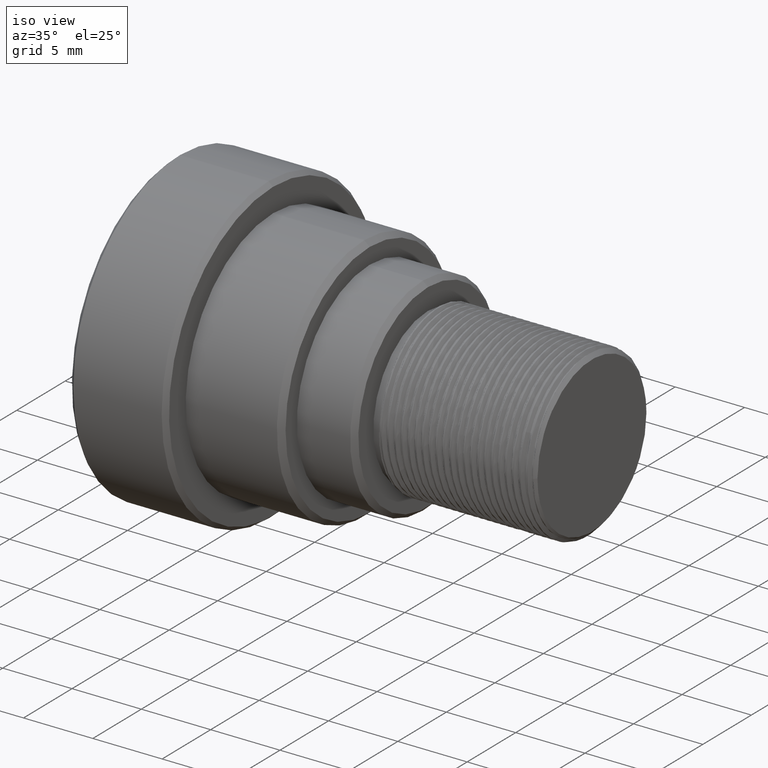
[diagram: clean part render]
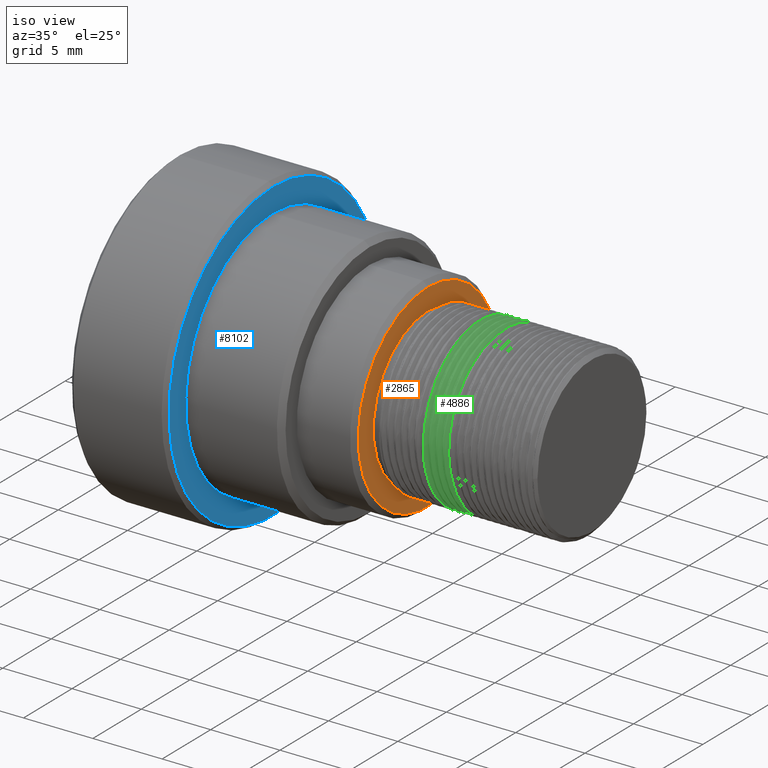
[diagram: same view with three faces highlighted in distinct colors, each labeled with its STEP entity id]
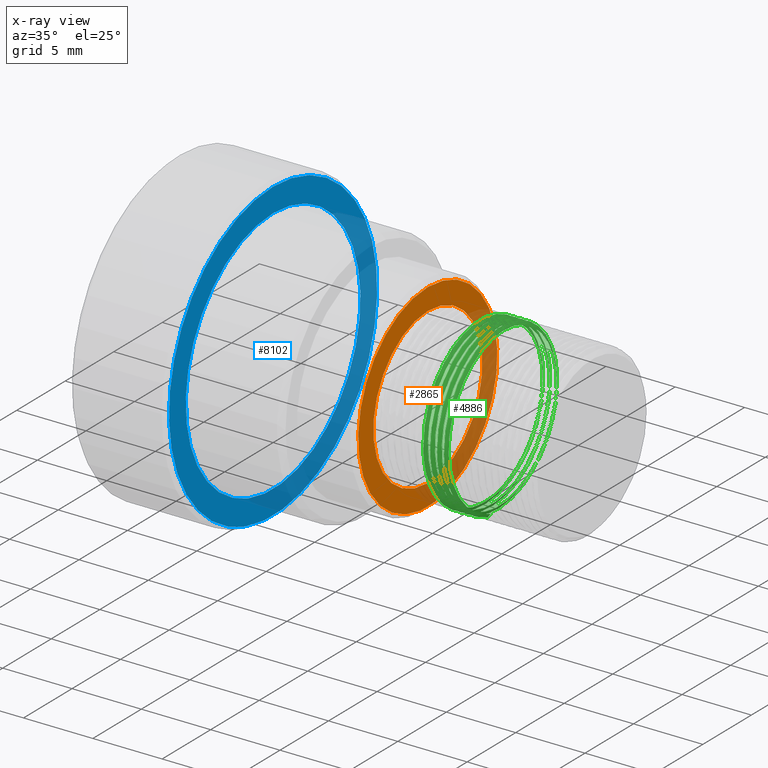
[diagram: x-ray of the same camera — body ghosted, the three highlighted faces saturated]
A machine part, iso view with three faces highlighted in distinct colors.
The next image is the same camera in x-ray (body ghosted, the three faces saturated) — at least one of them is partly hidden behind the body in this view.
Their STEP definitions:

[orange] entity #2865 — the highlighted planar face has unit normal (-1, 0, 0).
#788 = ORIENTED_EDGE ( 'NONE', *, *, #1198, .F. ) ;
#794 = DIRECTION ( 'NONE',  ( 0.000000000000000000, 0.000000000000000000, 1.000000000000000000 ) ) ;
#1198 = EDGE_CURVE ( 'NONE', #5216, #5216, #8255, .T. ) ;
#1645 = EDGE_LOOP ( 'NONE', ( #3221 ) ) ;
#2064 = CARTESIAN_POINT ( 'NONE',  ( -11.83933062470999964, 0.000000000000000000, 5.614487553974999656 ) ) ;
#2115 = VERTEX_POINT ( 'NONE', #2064 ) ;
#2275 = DIRECTION ( 'NONE',  ( 0.000000000000000000, 0.000000000000000000, 1.000000000000000000 ) ) ;
#2353 = AXIS2_PLACEMENT_3D ( 'NONE', #8188, #7455, #794 ) ;
#2368 = DIRECTION ( 'NONE',  ( 0.000000000000000000, 0.000000000000000000, 1.000000000000000000 ) ) ;
#2511 = CARTESIAN_POINT ( 'NONE',  ( -11.83933062470999964, 0.000000000000000000, 0.000000000000000000 ) ) ;
#2806 = FACE_OUTER_BOUND ( 'NONE', #5096, .T. ) ;
#2865 = ADVANCED_FACE ( 'NONE', ( #9470, #2806 ), #5770, .F. ) ;
#2936 = CARTESIAN_POINT ( 'NONE',  ( -11.83933062471239239, 0.000000000000000000, 7.160900886709494984 ) ) ;
#3221 = ORIENTED_EDGE ( 'NONE', *, *, #8810, .F. ) ;
#3956 = DIRECTION ( 'NONE',  ( 1.000000000000000000, -0.000000000000000000, -0.000000000000000000 ) ) ;
#5096 = EDGE_LOOP ( 'NONE', ( #788 ) ) ;
#5216 = VERTEX_POINT ( 'NONE', #2936 ) ;
#5770 = PLANE ( 'NONE',  #7170 ) ;
#7170 = AXIS2_PLACEMENT_3D ( 'NONE', #8743, #7525, #2275 ) ;
#7455 = DIRECTION ( 'NONE',  ( -1.000000000000000000, -0.000000000000000000, -0.000000000000000000 ) ) ;
#7525 = DIRECTION ( 'NONE',  ( -1.000000000000000000, 0.000000000000000000, 0.000000000000000000 ) ) ;
#7947 = AXIS2_PLACEMENT_3D ( 'NONE', #2511, #3956, #2368 ) ;
#8109 = CIRCLE ( 'NONE', #7947, 5.614487553974999656 ) ;
#8188 = CARTESIAN_POINT ( 'NONE',  ( -11.83933062471239239, 0.000000000000000000, 0.000000000000000000 ) ) ;
#8255 = CIRCLE ( 'NONE', #2353, 7.160900886709494984 ) ;
#8743 = CARTESIAN_POINT ( 'NONE',  ( -11.83933062470999964, 0.000000000000000000, 0.000000000000000000 ) ) ;
#8810 = EDGE_CURVE ( 'NONE', #2115, #2115, #8109, .T. ) ;
#9470 = FACE_BOUND ( 'NONE', #1645, .T. ) ;

[blue] entity #8102 — the highlighted planar face has unit normal (-1, 0, 0).
#439 = EDGE_CURVE ( 'NONE', #6685, #6685, #6066, .T. ) ;
#662 = VERTEX_POINT ( 'NONE', #9553 ) ;
#759 = CARTESIAN_POINT ( 'NONE',  ( -23.00000000000000000, 0.000000000000000000, 0.000000000000000000 ) ) ;
#1684 = EDGE_CURVE ( 'NONE', #662, #662, #1880, .T. ) ;
#1880 = CIRCLE ( 'NONE', #7317, 9.000000000000001776 ) ;
#1899 = DIRECTION ( 'NONE',  ( 0.000000000000000000, 0.000000000000000000, 1.000000000000000000 ) ) ;
#2375 = CARTESIAN_POINT ( 'NONE',  ( -23.00000000000000000, 0.000000000000000000, 0.000000000000000000 ) ) ;
#2628 = CARTESIAN_POINT ( 'NONE',  ( -23.00000000000463629, 0.000000000000000000, 0.000000000000000000 ) ) ;
#3147 = DIRECTION ( 'NONE',  ( 0.000000000000000000, 0.000000000000000000, 1.000000000000000000 ) ) ;
#4196 = AXIS2_PLACEMENT_3D ( 'NONE', #2628, #5585, #1899 ) ;
#4394 = FACE_BOUND ( 'NONE', #9527, .T. ) ;
#5286 = DIRECTION ( 'NONE',  ( -1.000000000000000000, 0.000000000000000000, 0.000000000000000000 ) ) ;
#5585 = DIRECTION ( 'NONE',  ( -1.000000000000000000, -0.000000000000000000, -0.000000000000000000 ) ) ;
#5906 = FACE_OUTER_BOUND ( 'NONE', #9290, .T. ) ;
#6012 = DIRECTION ( 'NONE',  ( 1.000000000000000000, -0.000000000000000000, -0.000000000000000000 ) ) ;
#6066 = CIRCLE ( 'NONE', #4196, 10.72255527094433170 ) ;
#6685 = VERTEX_POINT ( 'NONE', #8002 ) ;
#7195 = ORIENTED_EDGE ( 'NONE', *, *, #1684, .F. ) ;
#7230 = DIRECTION ( 'NONE',  ( 0.000000000000000000, 0.000000000000000000, 1.000000000000000000 ) ) ;
#7317 = AXIS2_PLACEMENT_3D ( 'NONE', #2375, #6012, #7230 ) ;
#8002 = CARTESIAN_POINT ( 'NONE',  ( -23.00000000000463629, 0.000000000000000000, 10.72255527094433170 ) ) ;
#8102 = ADVANCED_FACE ( 'NONE', ( #4394, #5906 ), #8880, .F. ) ;
#8880 = PLANE ( 'NONE',  #9499 ) ;
#9290 = EDGE_LOOP ( 'NONE', ( #9477 ) ) ;
#9477 = ORIENTED_EDGE ( 'NONE', *, *, #439, .F. ) ;
#9499 = AXIS2_PLACEMENT_3D ( 'NONE', #759, #5286, #3147 ) ;
#9527 = EDGE_LOOP ( 'NONE', ( #7195 ) ) ;
#9553 = CARTESIAN_POINT ( 'NONE',  ( -23.00000000000000000, 0.000000000000000000, 9.000000000000001776 ) ) ;

[green] entity #4886 — the highlighted face is a freeform B-spline surface patch.
#1 = CARTESIAN_POINT ( 'NONE',  ( -6.958281016404289865, -5.999999999999998224, -0.7853981633974498333 ) ) ;
#10 = CARTESIAN_POINT ( 'NONE',  ( -6.820406600579000056, 3.585530711977999996, -5.034229271187999899 ) ) ;
#37 = CARTESIAN_POINT ( 'NONE',  ( -6.549860056884000414, -0.1896635457372999878, 6.058413937872001220 ) ) ;
#52 = CARTESIAN_POINT ( 'NONE',  ( -6.215662515435377955, -1.562223436982328462, -5.523427783221216636 ) ) ;
#58 = CARTESIAN_POINT ( 'NONE',  ( -7.081716391680999756, -2.836305964369000066, 5.491344399863001158 ) ) ;
#141 = CARTESIAN_POINT ( 'NONE',  ( -6.760364349736833312, 5.242718330125549109, -3.021713882225395054 ) ) ;
#175 = CARTESIAN_POINT ( 'NONE',  ( -6.541614349736667222, -3.687280319849490340, 4.798001054389079201 ) ) ;
#176 = CARTESIAN_POINT ( 'NONE',  ( -8.152397648528493690, 4.033491374096346505, 4.441928225951181197 ) ) ;
#182 = CARTESIAN_POINT ( 'NONE',  ( -7.283204946650988276, -5.294843193874999798, -2.531683245687999850 ) ) ;
#215 = CARTESIAN_POINT ( 'NONE',  ( -8.079447629663999209, 5.387472780646000103, 2.179964986084999889 ) ) ;
#233 = CARTESIAN_POINT ( 'NONE',  ( -6.412172309644988744, -2.264670640273000135, 5.414429924162000418 ) ) ;
#237 = CARTESIAN_POINT ( 'NONE',  ( -7.833281016405874375, 0.7853981633974490562, -6.000000000000000000 ) ) ;
#262 = CARTESIAN_POINT ( 'NONE',  ( -7.092277307728999780, 5.794691438654999693, 1.315740534957000163 ) ) ;
#279 = CARTESIAN_POINT ( 'NONE',  ( -6.718753985626307212, 5.999967504901346338, -9.440241909298656336E-07 ) ) ;
#281 = CARTESIAN_POINT ( 'NONE',  ( -6.528309994578989084, 5.129199143473001321, 2.852385081057999816 ) ) ;
#310 = CARTESIAN_POINT ( 'NONE',  ( -7.992344365964000552, 0.5443019039440000206, 5.917206484507000042 ) ) ;
#321 = CARTESIAN_POINT ( 'NONE',  ( -8.091143064295335918, -0.1952453443668440702, 6.024518246435063951 ) ) ;
#360 = CARTESIAN_POINT ( 'NONE',  ( -7.963309944730999845, -1.602882665329999901, 5.721922460240000952 ) ) ;
#371 = CARTESIAN_POINT ( 'NONE',  ( -6.468726498754441501, -5.999983362885659588, -3.754956222748852149E-07 ) ) ;
#377 = CARTESIAN_POINT ( 'NONE',  ( -7.138032840483563568, 3.778640873401999833, -4.490730191636999713 ) ) ;
#381 = CARTESIAN_POINT ( 'NONE',  ( -7.729114349739626633, 6.000000000000000000, -0.7853981633974478349 ) ) ;
#388 = CARTESIAN_POINT ( 'NONE',  ( -7.333281016405793551, 0.7853981633974490562, -6.000000000000000000 ) ) ;
#406 = B_SPLINE_CURVE_WITH_KNOTS ( 'NONE', 3,
 ( #3675, #3050, #4552, #141, #2427, #729, #3723, #8942, #6705, #8264, #5287, #4412, #9037, #6659, #1644, #3871, #1, #5191 ),
 .UNSPECIFIED., .F., .F.,
 ( 4, 2, 2, 2, 2, 2, 2, 2, 4 ),
 ( 0.000000000000000000, 0.1249999999999999722, 0.2499999999999999445, 0.3749999999999998890, 0.4999999999999998890, 0.6249999999999998890, 0.7499999999999997780, 0.8749999999999998890, 1.000000000000000000 ),
 .UNSPECIFIED. ) ;
#408 = CARTESIAN_POINT ( 'NONE',  ( -6.695032163051999774, 5.912370062688999894, -1.335751452723999977 ) ) ;
#454 = CARTESIAN_POINT ( 'NONE',  ( -7.566064800058001083, 1.039450545895000078, 5.971590597510999743 ) ) ;
#463 = CARTESIAN_POINT ( 'NONE',  ( -6.697864349736665446, 5.843836060009893529, 1.570487306155685436 ) ) ;
#499 = CARTESIAN_POINT ( 'NONE',  ( -7.914477854858000150, -5.982250669908000695, -0.9762318540854001414 ) ) ;
#523 = CARTESIAN_POINT ( 'NONE',  ( -7.315315925003999631, -5.590221142194001125, 1.629948892300999930 ) ) ;
#536 = ORIENTED_EDGE ( 'NONE', *, *, #7138, .F. ) ;
#546 = CARTESIAN_POINT ( 'NONE',  ( -6.355855860842999583, 1.043062221852000038, -5.954290702844000194 ) ) ;
#572 = CARTESIAN_POINT ( 'NONE',  ( -7.112074976368999657, 3.749043880115999983, -4.455555610145999879 ) ) ;
#595 = CARTESIAN_POINT ( 'NONE',  ( -7.537030378824000287, -1.159730616313999985, 5.949401364777999746 ) ) ;
#621 = CARTESIAN_POINT ( 'NONE',  ( -7.228212661303000885, -4.011296077649999958, -4.220996279029000320 ) ) ;
#644 = CARTESIAN_POINT ( 'NONE',  ( -7.836611343751999748, 2.493372383762999966, -5.655315110352000296 ) ) ;
#661 = VERTEX_POINT ( 'NONE', #5871 ) ;
#672 = CARTESIAN_POINT ( 'NONE',  ( -7.199178240070000179, -2.241132303031999840, -5.374442465079000364 ) ) ;
#676 = CARTESIAN_POINT ( 'NONE',  ( -7.602583580218988502, 5.344848241173000503, -2.424331203253000222 ) ) ;
#694 = CARTESIAN_POINT ( 'NONE',  ( -6.675234494412000785, 3.974156501332000602, 4.733452750896001149 ) ) ;
#718 = CARTESIAN_POINT ( 'NONE',  ( -7.518556873638000404, 5.556194778652000288, 1.742413668400000004 ) ) ;
#723 = CARTESIAN_POINT ( 'NONE',  ( -7.573549158985565022, 5.858062080742000965, -0.3576215351449000268 ) ) ;
#729 = CARTESIAN_POINT ( 'NONE',  ( -6.791614349736957656, 3.687280319849489452, -4.798001054389080089 ) ) ;
#733 = EDGE_CURVE ( 'NONE', #5582, #7607, #8356, .T. ) ;
#739 = CARTESIAN_POINT ( 'NONE',  ( -7.720473658818000295, 5.897387029601000030, 1.849411004756000176 ) ) ;
#764 = CARTESIAN_POINT ( 'NONE',  ( -6.772898674160000354, -2.721209698320000037, -5.282484245344999607 ) ) ;
#784 = CARTESIAN_POINT ( 'NONE',  ( -7.894680186218999474, -1.911683262069999945, -5.877496231182999686 ) ) ;
#812 = CARTESIAN_POINT ( 'NONE',  ( -7.643931311164999798, 5.411531326987000234, -2.454577503684999940 ) ) ;
#822 = CARTESIAN_POINT ( 'NONE',  ( -7.677031016406335340, 5.242718330125546444, 3.021713882225399050 ) ) ;
#832 = CARTESIAN_POINT ( 'NONE',  ( -7.633370395118000751, 1.059890469151999914, 6.089016918586000138 ) ) ;
#839 = CARTESIAN_POINT ( 'NONE',  ( -7.052031016404668229, -3.021713882225400383, 5.242718330125545556 ) ) ;
#887 = CARTESIAN_POINT ( 'NONE',  ( -7.145781016405042152, 3.687280319849483234, 4.798001054389084530 ) ) ;
#938 = CARTESIAN_POINT ( 'NONE',  ( -7.218753457513435556, 5.999967797225797206, 7.324847164602491290E-07 ) ) ;
#953 = CARTESIAN_POINT ( 'NONE',  ( -8.152397648528493690, 4.033491374096346505, 4.441928225951181197 ) ) ;
#958 = CARTESIAN_POINT ( 'NONE',  ( -6.963826313082418729, 1.468777427161999993, 5.682207086484000413 ) ) ;
#988 = CARTESIAN_POINT ( 'NONE',  ( -6.860001937859999899, -5.942189136996000265, -0.003206978823795000617 ) ) ;
#1000 = CARTESIAN_POINT ( 'NONE',  ( -8.045226046336582115, -3.450133955974125310, 4.942622434696006373 ) ) ;
#1005 = CARTESIAN_POINT ( 'NONE',  ( -7.196101682950565070, -0.1773108917760000125, -5.866288890933000211 ) ) ;
#1008 = CARTESIAN_POINT ( 'NONE',  ( -6.290631600294758208, -1.597562279018153397, -5.648373968045858895 ) ) ;
#1035 = CARTESIAN_POINT ( 'NONE',  ( -7.614896889930999890, 5.931148095312999580, -0.3620832722110999824 ) ) ;
#1083 = CARTESIAN_POINT ( 'NONE',  ( -7.556828047465000253, 4.662253741236000337, 3.684156901773000037 ) ) ;
#1100 = CARTESIAN_POINT ( 'NONE',  ( -7.050929576782988484, 5.723286898401999778, 1.299527445961000005 ) ) ;
#1110 = CARTESIAN_POINT ( 'NONE',  ( -7.364531016405917008, -1.570487306155678109, -5.843836060009894418 ) ) ;
#1131 = CARTESIAN_POINT ( 'NONE',  ( -7.653168063757999739, 5.783656279286000235, 1.813745225968999897 ) ) ;
#1152 = CARTESIAN_POINT ( 'NONE',  ( -7.885364349739002243, -3.021713882225393277, -5.242718330125549109 ) ) ;
#1176 = CARTESIAN_POINT ( 'NONE',  ( -7.972546697325000764, -5.109770224101000125, 3.260460153904999991 ) ) ;
#1197 = CARTESIAN_POINT ( 'NONE',  ( -6.473317709231000805, 3.744232401810000166, 4.459599705348000320 ) ) ;
#1223 = CARTESIAN_POINT ( 'NONE',  ( -6.927307532919999566, -6.061381113260999598, -0.003271306316416000472 ) ) ;
#1244 = CARTESIAN_POINT ( 'NONE',  ( -7.344350346237000338, -4.640651270992999677, 3.517337287092999976 ) ) ;
#1269 = CARTESIAN_POINT ( 'NONE',  ( -8.117718803490999946, 4.437727437751999737, 4.128774892693000353 ) ) ;
#1285 = CARTESIAN_POINT ( 'NONE',  ( -7.718716654592690851, 5.999989046626787115, 2.473889642866013213E-07 ) ) ;
#1295 = CARTESIAN_POINT ( 'NONE',  ( -7.634694558571000655, 2.349118779278999813, -5.328127886137999702 ) ) ;
#1318 = CARTESIAN_POINT ( 'NONE',  ( -6.471993545776999923, -5.931632665897000223, -1.736443728924000007 ) ) ;
#1344 = CARTESIAN_POINT ( 'NONE',  ( -6.511588883057999766, 1.945535368378999985, 5.614669549812999705 ) ) ;
#1367 = CARTESIAN_POINT ( 'NONE',  ( -7.778542501285000021, 5.628626777370000056, -2.553048264820999780 ) ) ;
#1394 = CARTESIAN_POINT ( 'NONE',  ( -7.896004349671000178, -1.570731088158999977, 5.607148724443000276 ) ) ;
#1399 = CARTESIAN_POINT ( 'NONE',  ( -8.002396129802935576, 3.858788661450139212, 4.249534869816003813 ) ) ;
#1416 = CARTESIAN_POINT ( 'NONE',  ( -7.284957340315999730, 5.404767205001999919, -2.997997048224000594 ) ) ;
#1441 = CARTESIAN_POINT ( 'NONE',  ( -6.337382355656999700, -5.702850315237000700, -1.669469305443999962 ) ) ;
#1463 = CARTESIAN_POINT ( 'NONE',  ( -6.646200073177999990, 2.023584787576000021, 5.839914335627000241 ) ) ;
#1486 = CARTESIAN_POINT ( 'NONE',  ( -7.976350519398456740, -6.000000000000000000, 0.5770102651824570161 ) ) ;
#1490 = CARTESIAN_POINT ( 'NONE',  ( -7.702000153631001211, 2.397203314108999894, -5.437190294208999575 ) ) ;
#1511 = CARTESIAN_POINT ( 'NONE',  ( -7.546267131418000318, -4.925622247728999703, 3.733328315873000403 ) ) ;
#1535 = CARTESIAN_POINT ( 'NONE',  ( -7.672965732397999616, 4.179483094630000117, -4.223925080566999668 ) ) ;
#1562 = CARTESIAN_POINT ( 'NONE',  ( -6.989531016404417763, -5.843836060009892641, 1.570487306155683216 ) ) ;
#1585 = CARTESIAN_POINT ( 'NONE',  ( -7.863893371318988024, -4.947564362199999621, 3.156959267118999879 ) ) ;
#1635 = CARTESIAN_POINT ( 'NONE',  ( -6.644447679513420191, 3.404758971875000206, -4.780418480390999925 ) ) ;
#1644 = CARTESIAN_POINT ( 'NONE',  ( -6.927031016404167296, -5.242718330125547332, -3.021713882225394610 ) ) ;
#1660 = CARTESIAN_POINT ( 'NONE',  ( -7.197864349738584799, 5.843836060009893529, 1.570487306155685436 ) ) ;
#1679 = CARTESIAN_POINT ( 'NONE',  ( -8.121754409601168234, 2.083098456741209858, 5.656292218905272229 ) ) ;
#1685 = CARTESIAN_POINT ( 'NONE',  ( -6.383137888411418714, -4.047553146731000417, 4.249952699806000211 ) ) ;
#1694 = CARTESIAN_POINT ( 'NONE',  ( -7.239531016405417851, 5.843836060009893529, -1.570487306155681217 ) ) ;
#1715 = CARTESIAN_POINT ( 'NONE',  ( -6.801933095393000173, -4.426960065990000359, -3.963791946947000433 ) ) ;
#1727 = CARTESIAN_POINT ( 'NONE',  ( -7.999309028377832753, -5.587850943878612142, 2.260279335639917342 ) ) ;
#1732 = CARTESIAN_POINT ( 'NONE',  ( -6.557344415812564442, 5.809344619855999703, 0.8344456795012999972 ) ) ;
#1737 = DIRECTION ( 'NONE',  ( 0.5000092264518622986, -0.5821824948698748337, -0.6411351777356304460 ) ) ;
#1743 = CARTESIAN_POINT ( 'NONE',  ( -7.354114349739209189, -0.7853981633974475018, -6.000000000000000888 ) ) ;
#1763 = CARTESIAN_POINT ( 'NONE',  ( -6.947105201561000420, -2.726909988208999991, 5.279543914085000011 ) ) ;
#1774 = CARTESIAN_POINT ( 'NONE',  ( -8.029920373683665957, -4.328839197011419060, 4.194531207720769928 ) ) ;
#1812 = CARTESIAN_POINT ( 'NONE',  ( -7.005174044028000147, 1.487102102961000094, 5.753099109168999803 ) ) ;
#1837 = CARTESIAN_POINT ( 'NONE',  ( -6.399987321383334482, -3.919694549877260403, -4.588611376635447492 ) ) ;
#1858 = CARTESIAN_POINT ( 'NONE',  ( -6.559096809477000356, -4.262453300175000237, 4.475599023451000136 ) ) ;
#1879 = CARTESIAN_POINT ( 'NONE',  ( -7.802031016405998720, 3.021713882225395942, -5.242718330125547332 ) ) ;
#1907 = CARTESIAN_POINT ( 'NONE',  ( -6.811169847986001002, -0.6703930999391000123, -6.024194949800000032 ) ) ;
#1953 = CARTESIAN_POINT ( 'NONE',  ( -7.449927115123999855, -5.819075626336999818, 1.696676326415000213 ) ) ;
#1976 = CARTESIAN_POINT ( 'NONE',  ( -6.451520092648332927, -5.894253689423495146, -1.295041765675259748 ) ) ;
#1997 = CARTESIAN_POINT ( 'NONE',  ( -6.869238690452999840, -4.515758673196000217, -4.043300051579000076 ) ) ;
#2023 = CARTESIAN_POINT ( 'NONE',  ( -6.734627500332999617, -4.338161458785999791, -3.884283842312000079 ) ) ;
#2048 = CARTESIAN_POINT ( 'NONE',  ( -7.595099221291000013, 3.101787397418999781, 5.207616215012000005 ) ) ;
#2074 = CARTESIAN_POINT ( 'NONE',  ( -7.402419188704000064, -1.114120356376000043, 5.715421387933999675 ) ) ;
#2099 = CARTESIAN_POINT ( 'NONE',  ( -6.849441021812999963, 1.553218540275000281, -5.982224252531000097 ) ) ;
#2125 = CARTESIAN_POINT ( 'NONE',  ( -6.792696342800000231, -5.822997160732000133, -0.003142651327755000001 ) ) ;
#2130 = CARTESIAN_POINT ( 'NONE',  ( -7.994920150856425600, 3.461067782684006833, 4.610319646186491482 ) ) ;
#2137 = B_SPLINE_CURVE_WITH_KNOTS ( 'NONE', 3,
 ( #4799, #3291, #1694, #9453, #3967, #8408, #4751, #4013, #388, #1743, #1110, #9185, #4703, #6214, #4653, #5479, #6949, #7724 ),
 .UNSPECIFIED., .F., .F.,
 ( 4, 2, 2, 2, 2, 2, 2, 2, 4 ),
 ( 0.000000000000000000, 0.1249999999999999722, 0.2499999999999999445, 0.3749999999999998890, 0.4999999999999998890, 0.6249999999999998890, 0.7499999999999997780, 0.8749999999999998890, 1.000000000000000000 ),
 .UNSPECIFIED. ) ;
#2148 = CARTESIAN_POINT ( 'NONE',  ( -7.139785234148000370, 1.546760466059000194, 5.983897300427000410 ) ) ;
#2176 = CARTESIAN_POINT ( 'NONE',  ( -6.230922811134000483, 0.3066065552475000233, -5.846597890754000382 ) ) ;
#2181 = CARTESIAN_POINT ( 'NONE',  ( -7.805824528852419952, -5.792348564045999737, -0.9452420987048001377 ) ) ;
#2187 = VERTEX_POINT ( 'NONE', #176 ) ;
#2196 = CARTESIAN_POINT ( 'NONE',  ( -6.617165651944000082, -0.1933931203046000136, 6.177547567120999616 ) ) ;
#2224 = CARTESIAN_POINT ( 'NONE',  ( -7.024971712669000112, 5.678458059257000201, 1.289348626014999999 ) ) ;
#2228 = CARTESIAN_POINT ( 'NONE',  ( -7.834858950085564544, -5.748342909041999960, 1.183781325357000203 ) ) ;
#2234 = CARTESIAN_POINT ( 'NONE',  ( -7.583281016406333563, -0.7853981633974490562, 6.000000000000001776 ) ) ;
#2243 = CARTESIAN_POINT ( 'NONE',  ( -7.459163867717000684, -5.575966769917999777, -2.666100039794999876 ) ) ;
#2270 = CARTESIAN_POINT ( 'NONE',  ( -6.578894478118000322, 1.984560077978000159, 5.727291942719999973 ) ) ;
#2281 = CARTESIAN_POINT ( 'NONE',  ( -7.614531016406335340, 1.570487306155682106, 5.843836060009895306 ) ) ;
#2291 = CARTESIAN_POINT ( 'NONE',  ( -6.468726498754441501, -5.999983362885659588, -3.754956222748852149E-07 ) ) ;
#2298 = CARTESIAN_POINT ( 'NONE',  ( -7.166614349738459566, 4.798001054389078313, 3.687280319849496557 ) ) ;
#2327 = CARTESIAN_POINT ( 'NONE',  ( -7.697864349739669265, 5.843836060009893529, 1.570487306155685436 ) ) ;
#2363 = CARTESIAN_POINT ( 'NONE',  ( -8.114101573274709267, 1.526916763712245828, 5.831077605624919613 ) ) ;
#2397 = CARTESIAN_POINT ( 'NONE',  ( -7.177031016405168273, 5.242718330125546444, 3.021713882225399050 ) ) ;
#2413 = CARTESIAN_POINT ( 'NONE',  ( -6.583281016403335073, -0.7853981633974490562, 6.000000000000001776 ) ) ;
#2418 = CARTESIAN_POINT ( 'NONE',  ( -6.470241152111988470, 1.921561691783000070, 5.545483312354000383 ) ) ;
#2427 = CARTESIAN_POINT ( 'NONE',  ( -6.770781016403542019, 4.798001054389081865, -3.687280319849489008 ) ) ;
#2448 = CARTESIAN_POINT ( 'NONE',  ( -6.346619108249999641, -3.200687123992000060, -5.147429078136999792 ) ) ;
#2467 = CARTESIAN_POINT ( 'NONE',  ( -6.615413258279563280, 4.886369403477999640, -3.250873506765000087 ) ) ;
#2471 = CARTESIAN_POINT ( 'NONE',  ( -7.864531016405749142, -1.570487306155678109, -5.843836060009894418 ) ) ;
#2497 = CARTESIAN_POINT ( 'NONE',  ( -7.179380571429000213, 3.825783733639000594, -4.546757179350000122 ) ) ;
#2508 = CARTESIAN_POINT ( 'NONE',  ( -7.218753457513435556, 5.999967797225797206, 7.324847164602491290E-07 ) ) ;
#2520 = CARTESIAN_POINT ( 'NONE',  ( -6.241042339363000124, -4.636849705339000316, -3.522343925113000207 ) ) ;
#2543 = CARTESIAN_POINT ( 'NONE',  ( -6.433722371950000962, -6.041961073284999983, 0.4848258098380999748 ) ) ;
#2547 = ORIENTED_EDGE ( 'NONE', *, *, #6263, .F. ) ;
#2590 = CARTESIAN_POINT ( 'NONE',  ( -8.021378787197999571, 2.619823603677999824, 5.333499410914000372 ) ) ;
#2600 = CARTESIAN_POINT ( 'NONE',  ( -6.677031016403335073, 5.242718330125546444, 3.021713882225399050 ) ) ;
#2610 = CARTESIAN_POINT ( 'NONE',  ( -7.770781016406125730, 4.798001054389081865, -3.687280319849489008 ) ) ;
#2625 = ORIENTED_EDGE ( 'NONE', *, *, #3636, .F. ) ;
#2635 = CARTESIAN_POINT ( 'NONE',  ( -7.740271327458000172, 4.263317661033999784, -4.308651090857001265 ) ) ;
#2647 = CARTESIAN_POINT ( 'NONE',  ( -6.708281016403333297, 6.000000000000000888, 0.7853981633974500554 ) ) ;
#2657 = LINE ( 'NONE', #8357, #6552 ) ;
#2659 = CARTESIAN_POINT ( 'NONE',  ( -6.212007918129000217, -3.074809467865000201, -4.944989326192000156 ) ) ;
#2683 = CARTESIAN_POINT ( 'NONE',  ( -7.362823851423001109, -4.175511959501999826, -4.393796943156999646 ) ) ;
#2705 = CARTESIAN_POINT ( 'NONE',  ( -6.618489815399000165, 3.378090486616999844, -4.742974854916999661 ) ) ;
#2727 = CARTESIAN_POINT ( 'NONE',  ( -7.478961536356999673, -4.830631922149000168, 3.661331306280999787 ) ) ;
#2752 = CARTESIAN_POINT ( 'NONE',  ( -6.676558657866000779, -0.6440276637566000328, -5.787273466708000136 ) ) ;
#2754 = B_SPLINE_SURFACE_WITH_KNOTS ( 'NONE', 3, 3, ( 
 ( #4794, #6945, #7767, #2659, #2520, #4057, #9275, #7721, #5618, #7864, #9368, #8591, #1197, #4150, #4010, #7132, #5475, #2705, #5665, #2752, #7330, #2023, #6547, #2125, #9563, #2898, #5084, #7280, #5812, #3617, #4986, #2224, #8685, #8112, #572, #9613, #7231, #672, #621, #3665, #7961, #523, #1244, #3566, #2074, #6450, #2849, #8837, #718, #8886, #8786, #5764, #1295, #4350, #4198, #9513, #8061, #9463, #5911, #6500, #2799, #1394, #3518, #5180, #8737, #6601, #7183 ),
 ( #5863, #2176, #6649, #5131, #5035, #1441, #5713, #4399, #3470, #4248, #8012, #1344, #7380, #4299, #2946, #9414, #7426, #6921, #2993, #6138, #764, #1715, #7651, #988, #9159, #7017, #1763, #8204, #1812, #5405, #6186, #262, #4673, #5449, #2497, #3311, #3170, #4772, #6285, #3712, #7743, #4726, #8931, #4493, #5957, #8429, #7473, #1083, #3942, #1035, #812, #1535, #1490, #9253, #8382, #3217, #7698, #9109, #4033, #6968, #5499, #360, #310, #2590, #3761, #6741, #215 ),
 ( #3986, #3263, #6234, #2448, #4447, #9206, #2543, #8475, #8159, #6695, #37, #2270, #5226, #3402, #4223, #408, #9438, #9487, #7065, #1907, #3356, #1997, #6334, #1223, #2776, #4821, #4173, #9300, #6380, #7794, #8614, #4915, #7889, #6426, #4272, #8659, #5592, #8711, #2683, #3446, #7157, #1953, #2727, #9390, #595, #454, #2048, #3541, #1131, #5010, #4961, #2635, #4870, #8567, #5687, #7841, #7986, #499, #7934, #1176, #4128, #8521, #6523, #5641, #1269, #7205, #9345 ),
 ( #546, #3492, #5546, #6472, #5738, #1318, #7111, #7254, #1858, #4082, #2196, #1463, #694, #5788, #3640, #2873, #6668, #10, #2099, #8179, #7494, #5884, #8761, #5153, #8856, #5931, #58, #2966, #2148, #4513, #7402, #6623, #5058, #1416, #4373, #7445, #8035, #8133, #9585, #2243, #4422, #4323, #1511, #6574, #2918, #832, #5105, #4467, #739, #3686, #1367, #8905, #644, #5200, #784, #8084, #2825, #5978, #3733, #5836, #7352, #3591, #9537, #3782, #8809, #6715, #3013 ) ),
 .UNSPECIFIED., .F., .F., .F.,
 ( 4, 4 ),
 ( 4, 1, 1, 1, 1, 1, 1, 1, 1, 1, 1, 1, 1, 1, 1, 1, 1, 1, 1, 1, 1, 1, 1, 1, 1, 1, 1, 1, 1, 1, 1, 1, 1, 1, 1, 1, 1, 1, 1, 1, 1, 1, 1, 1, 1, 1, 1, 1, 1, 1, 1, 1, 1, 1, 1, 1, 1, 1, 1, 1, 1, 1, 1, 1, 4 ),
 ( -0.1730559506016000060, 1.173055950601999964 ),
 ( -0.01999999999990000055, -0.003749999999903000196, 0.01250000000008999988, 0.02875000000008999870, 0.04500000000009000273, 0.06125000000007999740, 0.07750000000008000489, 0.09375000000008000545, 0.1100000000001000039, 0.1262500000001000044, 0.1425000000000999911, 0.1587500000001000056, 0.1750000000000999922, 0.1912500000001000067, 0.2075000000000999933, 0.2237500000001000078, 0.2399999999999999911, 0.2562499999999999778, 0.2725000000000000200, 0.2887500000000000067, 0.3049999999999999933, 0.3212499999999999800, 0.3375000000000000222, 0.3537500000000000089, 0.3699999999999999956, 0.3862499999999999822, 0.4025000000000000244, 0.4187500000000000111, 0.4349999999999999978, 0.4512499999999999845, 0.4675000000000000266, 0.4837500000000000133, 0.5000000000000000000, 0.5162499999999999867, 0.5324999999999999734, 0.5487499999999999600, 0.5649999999999999467, 0.5812500000000000444, 0.5975000000000000311, 0.6137500000000000178, 0.6300000000000000044, 0.6462499999999999911, 0.6624999999999999778, 0.6787499999999999645, 0.6949999999999999512, 0.7112500000000000488, 0.7275000000000000355, 0.7437500000000000222, 0.7599999999998999778, 0.7762499999998999645, 0.7924999999998999511, 0.8087499999999000488, 0.8249999999999000355, 0.8412499999999000222, 0.8574999999999000089, 0.8737499999998999956, 0.8899999999998999822, 0.9062499999998999689, 0.9224999999998999556, 0.9387499999999000533, 0.9549999999999000400, 0.9712499999999000266, 0.9874999999999000133, 1.003749999999999920, 1.020000000000000018 ),
 .UNSPECIFIED. ) ;
#2776 = CARTESIAN_POINT ( 'NONE',  ( -6.956341954154000362, -5.663556071430999594, 2.159741727012999934 ) ) ;
#2799 = CARTESIAN_POINT ( 'NONE',  ( -7.866969928437999471, -3.468057061821999909, 4.677593842730000340 ) ) ;
#2825 = CARTESIAN_POINT ( 'NONE',  ( -7.952749028685000887, -5.343174823916999827, -3.106441315086999833 ) ) ;
#2849 = CARTESIAN_POINT ( 'NONE',  ( -7.460488031170999790, 2.979799301652000132, 5.002809403927000353 ) ) ;
#2873 = CARTESIAN_POINT ( 'NONE',  ( -6.762337758112000330, 6.028631861611000176, -1.362017884824999969 ) ) ;
#2898 = CARTESIAN_POINT ( 'NONE',  ( -6.850765185267000845, -4.342351599371000681, 3.879598999585999852 ) ) ;
#2902 = CARTESIAN_POINT ( 'NONE',  ( -7.457411474051990119, 1.006453960074999987, 5.782026887734000198 ) ) ;
#2918 = CARTESIAN_POINT ( 'NONE',  ( -7.604335973885000044, -1.182535746287000089, 6.066391353200000225 ) ) ;
#2946 = CARTESIAN_POINT ( 'NONE',  ( -6.598692146758000199, 5.881822828465000264, 0.8448563423196999711 ) ) ;
#2950 = CARTESIAN_POINT ( 'NONE',  ( -7.950996635018563907, 0.5375947949253000457, 5.844292264123000180 ) ) ;
#2956 = CARTESIAN_POINT ( 'NONE',  ( -7.468727397311782035, -5.999982844085813838, -4.009958501109374781E-07 ) ) ;
#2966 = CARTESIAN_POINT ( 'NONE',  ( -7.110750812914999663, -0.6902057577393000409, 6.141914266204000050 ) ) ;
#2993 = CARTESIAN_POINT ( 'NONE',  ( -6.714829831692999740, 1.493311090043000000, -5.751490590526000091 ) ) ;
#3003 = CARTESIAN_POINT ( 'NONE',  ( -7.520781016406333563, -4.798001054389080977, 3.687280319849487675 ) ) ;
#3013 = CARTESIAN_POINT ( 'NONE',  ( -8.214058819784000320, 5.603603069665999747, 2.267419063660999878 ) ) ;
#3050 = CARTESIAN_POINT ( 'NONE',  ( -6.729114349736710743, 6.000000000000000000, -0.7853981633974478349 ) ) ;
#3098 = CARTESIAN_POINT ( 'NONE',  ( -7.604114349739667489, 0.7853981633974470578, 6.000000000000000888 ) ) ;
#3139 = CARTESIAN_POINT ( 'NONE',  ( -6.847688628147989398, -5.483770688977000596, 2.091182329436000131 ) ) ;
#3170 = CARTESIAN_POINT ( 'NONE',  ( -7.237449413895999939, -0.1795230476450999924, -5.939477544356000394 ) ) ;
#3191 = CARTESIAN_POINT ( 'NONE',  ( -7.947864349738750889, -5.843836060009893529, -1.570487306155678331 ) ) ;
#3197 = ORIENTED_EDGE ( 'NONE', *, *, #7098, .F. ) ;
#3217 = CARTESIAN_POINT ( 'NONE',  ( -7.789103417331999957, -3.733262725713000219, -4.623026221427999793 ) ) ;
#3234 = CARTESIAN_POINT ( 'NONE',  ( -6.325069045944419877, -5.850163505001000352, 0.4694353744743999801 ) ) ;
#3238 = CARTESIAN_POINT ( 'NONE',  ( -7.718716654592690851, 5.999989046626787115, 2.473889642866013213E-07 ) ) ;
#3263 = CARTESIAN_POINT ( 'NONE',  ( -6.298228406194001039, 0.3127566525286999966, -5.963872440748000159 ) ) ;
#3291 = CARTESIAN_POINT ( 'NONE',  ( -7.229114349738711809, 6.000000000000000000, -0.7853981633974478349 ) ) ;
#3311 = CARTESIAN_POINT ( 'NONE',  ( -7.208414992663000120, 1.951594668810999966, -5.612566282300000431 ) ) ;
#3321 = CARTESIAN_POINT ( 'NONE',  ( -8.022267537357208766, -4.713813094274631688, 3.756714915770287266 ) ) ;
#3356 = CARTESIAN_POINT ( 'NONE',  ( -6.840204269220000022, -2.775793346586000077, -5.388443467152001176 ) ) ;
#3380 = CARTESIAN_POINT ( 'NONE',  ( -6.425753707015832816, -5.175934235138492490, -3.103073399655097209 ) ) ;
#3402 = CARTESIAN_POINT ( 'NONE',  ( -6.636963320585000048, 5.297359900368000751, 2.945900505351000120 ) ) ;
#3446 = CARTESIAN_POINT ( 'NONE',  ( -7.391858272657000128, -5.468434589768000009, -2.614684462620000094 ) ) ;
#3457 = CARTESIAN_POINT ( 'NONE',  ( -6.718753985626307212, 5.999967504901346338, -9.440241909298656336E-07 ) ) ;
#3470 = CARTESIAN_POINT ( 'NONE',  ( -6.424485619357000132, -4.098050994684999893, 4.302975713331999685 ) ) ;
#3492 = CARTESIAN_POINT ( 'NONE',  ( -6.365534001254000707, 0.3189067498099000253, -6.081146990743000025 ) ) ;
#3518 = CARTESIAN_POINT ( 'NONE',  ( -7.925038770904000884, 0.5333839714921001507, 5.798515625195999945 ) ) ;
#3541 = CARTESIAN_POINT ( 'NONE',  ( -7.624133642524999921, 4.755772009414999779, 3.758055919769000219 ) ) ;
#3566 = CARTESIAN_POINT ( 'NONE',  ( -7.373384767471000245, -3.080136774461000204, 4.941666040999000309 ) ) ;
#3581 = ORIENTED_EDGE ( 'NONE', *, *, #9408, .F. ) ;
#3591 = CARTESIAN_POINT ( 'NONE',  ( -8.097921134851999270, -1.667185819670000235, 5.951469931835999816 ) ) ;
#3617 = CARTESIAN_POINT ( 'NONE',  ( -6.966902870201000297, 3.372968986124000423, 4.746618378255999637 ) ) ;
#3621 = CARTESIAN_POINT ( 'NONE',  ( -7.544514737752005651, 5.600058404902999776, 1.756169230430000061 ) ) ;
#3636 = EDGE_CURVE ( 'NONE', #3797, #2187, #3892, .T. ) ;
#3640 = CARTESIAN_POINT ( 'NONE',  ( -6.733303336878999623, 6.117785054103000775, 0.8787496078408999489 ) ) ;
#3654 = VERTEX_POINT ( 'NONE', #2508 ) ;
#3665 = CARTESIAN_POINT ( 'NONE',  ( -7.257247082536999905, -5.253370229467000385, -2.511853308276000174 ) ) ;
#3675 = CARTESIAN_POINT ( 'NONE',  ( -6.718753985626307212, 5.999967504901346338, -9.440241909298656336E-07 ) ) ;
#3686 = CARTESIAN_POINT ( 'NONE',  ( -7.749508080052000203, 6.169089112234999561, -0.3766090369765999757 ) ) ;
#3712 = CARTESIAN_POINT ( 'NONE',  ( -7.324552677596999573, -5.360902409616000064, -2.563268885450999957 ) ) ;
#3723 = CARTESIAN_POINT ( 'NONE',  ( -6.802031016403666364, 3.021713882225395942, -5.242718330125547332 ) ) ;
#3733 = CARTESIAN_POINT ( 'NONE',  ( -8.010817871151999725, -6.053544527999999758, 1.246632825819000034 ) ) ;
#3745 = EDGE_CURVE ( 'NONE', #4918, #8764, #7262, .T. ) ;
#3761 = CARTESIAN_POINT ( 'NONE',  ( -8.050413208430999390, 4.350463249351999906, 4.047585996991999835 ) ) ;
#3771 = CARTESIAN_POINT ( 'NONE',  ( -7.708281016406335340, 6.000000000000000888, 0.7853981633974500554 ) ) ;
#3782 = CARTESIAN_POINT ( 'NONE',  ( -8.155989977318000683, 2.724923574611000099, 5.547464439807000325 ) ) ;
#3789 = CARTESIAN_POINT ( 'NONE',  ( -7.135364349738333445, 3.021713882225398606, 5.242718330125547332 ) ) ;
#3797 = VERTEX_POINT ( 'NONE', #9448 ) ;
#3811 = CARTESIAN_POINT ( 'NONE',  ( -7.689686843918988934, 0.2956417581520999760, -5.861516907328001125 ) ) ;
#3860 = CARTESIAN_POINT ( 'NONE',  ( -7.225136104183989438, -2.258825021454000215, -5.416871239625000278 ) ) ;
#3871 = CARTESIAN_POINT ( 'NONE',  ( -6.947864349737581158, -5.843836060009893529, -1.570487306155678331 ) ) ;
#3892 = B_SPLINE_CURVE_WITH_KNOTS ( 'NONE', 3,
 ( #5177, #1486, #5369, #1727, #6152, #3321, #1774, #1000, #4587, #6295, #4636, #321, #8348, #2363, #1679, #4736, #7616, #953 ),
 .UNSPECIFIED., .F., .F.,
 ( 4, 2, 2, 2, 2, 2, 2, 2, 4 ),
 ( 0.000000000000000000, 0.1250000000000000000, 0.2500000000000000000, 0.3750000000000000000, 0.5000000000000000000, 0.6250000000000000000, 0.7500000000000000000, 0.8750000000000000000, 1.000000000000000000 ),
 .UNSPECIFIED. ) ;
#3912 = CARTESIAN_POINT ( 'NONE',  ( -6.934791891848564482, -0.6554076466999999573, 5.832257309213000340 ) ) ;
#3937 = CARTESIAN_POINT ( 'NONE',  ( -6.968697686071383401, -5.999999998267729673, -3.981036330549616513E-11 ) ) ;
#3942 = CARTESIAN_POINT ( 'NONE',  ( -7.585862468698000072, 5.669925528968001061, 1.778079447188000151 ) ) ;
#3953 = CARTESIAN_POINT ( 'NONE',  ( -6.489531016403335073, -5.843836060009892641, 1.570487306155683216 ) ) ;
#3958 = CARTESIAN_POINT ( 'NONE',  ( -7.108998419249989986, 5.132274999249999858, -2.846846999103000098 ) ) ;
#3967 = CARTESIAN_POINT ( 'NONE',  ( -7.270781016405543085, 4.798001054389081865, -3.687280319849489008 ) ) ;
#3981 = CARTESIAN_POINT ( 'NONE',  ( -6.979114349737710832, -6.000000000000000888, 0.7853981633974468357 ) ) ;
#3986 = CARTESIAN_POINT ( 'NONE',  ( -6.288550265782999915, 1.022946830320000000, -5.839462568649000040 ) ) ;
#4010 = CARTESIAN_POINT ( 'NONE',  ( -6.531386551697999643, 5.763841715645999564, 0.8279097095584999622 ) ) ;
#4013 = CARTESIAN_POINT ( 'NONE',  ( -7.322864349739085732, 1.570487306155681884, -5.843836060009893529 ) ) ;
#4033 = CARTESIAN_POINT ( 'NONE',  ( -7.876206681031001189, -5.820060051642999888, 1.198550349310999907 ) ) ;
#4050 = CARTESIAN_POINT ( 'NONE',  ( -7.341273789117989779, -5.634353391081999618, 1.642816596163999998 ) ) ;
#4057 = CARTESIAN_POINT ( 'NONE',  ( -6.270076760595999943, -5.588459139907000939, -1.635982093703999940 ) ) ;
#4082 = CARTESIAN_POINT ( 'NONE',  ( -6.588131230711000264, -2.384910708890000119, 5.701902819348999785 ) ) ;
#4102 = CARTESIAN_POINT ( 'NONE',  ( -7.927031016405499564, -5.242718330125547332, -3.021713882225394610 ) ) ;
#4128 = CARTESIAN_POINT ( 'NONE',  ( -8.001581118558000583, -3.610033629415000167, 4.869086862180999731 ) ) ;
#4150 = CARTESIAN_POINT ( 'NONE',  ( -6.502352130464999824, 5.089023620661000002, 2.830043179586000157 ) ) ;
#4163 = VERTEX_POINT ( 'NONE', #8519 ) ;
#4173 = CARTESIAN_POINT ( 'NONE',  ( -7.014410796621000088, -2.781607976286999850, 5.385444156974999785 ) ) ;
#4184 = CARTESIAN_POINT ( 'NONE',  ( -6.604114349736667222, 0.7853981633974470578, 6.000000000000000888 ) ) ;
#4198 = CARTESIAN_POINT ( 'NONE',  ( -7.692763401038000382, -1.801083175620999954, -5.537454758750000039 ) ) ;
#4223 = CARTESIAN_POINT ( 'NONE',  ( -6.665997741817999866, 5.999803941284000075, 0.8618029750796000199 ) ) ;
#4248 = CARTESIAN_POINT ( 'NONE',  ( -6.453520040591000040, -2.292924992844000087, 5.481981120936000096 ) ) ;
#4272 = CARTESIAN_POINT ( 'NONE',  ( -7.246686166488999881, 3.902523587157999962, -4.637958748556999744 ) ) ;
#4299 = CARTESIAN_POINT ( 'NONE',  ( -6.569657725525000380, 5.193191760514999977, 2.887971842469000627 ) ) ;
#4323 = CARTESIAN_POINT ( 'NONE',  ( -7.517232710184000410, -5.933502868408999653, 1.730040043468999977 ) ) ;
#4350 = CARTESIAN_POINT ( 'NONE',  ( -7.663728979804999675, 0.2933260823773999881, -5.815605352788001170 ) ) ;
#4373 = CARTESIAN_POINT ( 'NONE',  ( -7.313991761549999637, 3.979263440681000574, -4.729160317759999899 ) ) ;
#4399 = CARTESIAN_POINT ( 'NONE',  ( -6.395451198124000314, -5.363666105142000262, 2.557480865223999977 ) ) ;
#4403 = B_SPLINE_CURVE_WITH_KNOTS ( 'NONE', 3,
 ( #3238, #381, #9273, #6895, #2610, #8541, #1879, #4845, #237, #7817, #2471, #1152, #9133, #7085, #4102, #3191, #9319, #6161 ),
 .UNSPECIFIED., .F., .F.,
 ( 4, 2, 2, 2, 2, 2, 2, 2, 4 ),
 ( 0.000000000000000000, 0.1249999999999999722, 0.2499999999999999445, 0.3749999999999998890, 0.4999999999999998890, 0.6249999999999998890, 0.7499999999999997780, 0.8749999999999998890, 1.000000000000000000 ),
 .UNSPECIFIED. ) ;
#4412 = CARTESIAN_POINT ( 'NONE',  ( -6.885364349737333356, -3.021713882225393277, -5.242718330125549109 ) ) ;
#4422 = CARTESIAN_POINT ( 'NONE',  ( -7.488198288950999704, -6.160234147077000344, -0.5010090763765999711 ) ) ;
#4447 = CARTESIAN_POINT ( 'NONE',  ( -6.375653529483000348, -4.826674726635999946, -3.666542907846999988 ) ) ;
#4457 = CARTESIAN_POINT ( 'NONE',  ( -7.479114349739668377, -6.000000000000000888, 0.7853981633974468357 ) ) ;
#4467 = CARTESIAN_POINT ( 'NONE',  ( -7.691439237584999589, 4.849290277589999754, 3.831954937768999869 ) ) ;
#4493 = CARTESIAN_POINT ( 'NONE',  ( -7.440690362530999913, -3.143184648121999825, 5.042817892048000239 ) ) ;
#4513 = CARTESIAN_POINT ( 'NONE',  ( -7.168819655382000278, 3.580094712742000418, 5.038096534329000065 ) ) ;
#4522 = CARTESIAN_POINT ( 'NONE',  ( -7.020781016404540331, -4.798001054389080977, 3.687280319849487675 ) ) ;
#4544 = CARTESIAN_POINT ( 'NONE',  ( -7.776790107618988479, -5.073787921896000697, -2.949823830212000342 ) ) ;
#4552 = CARTESIAN_POINT ( 'NONE',  ( -6.739531016403418562, 5.843836060009893529, -1.570487306155681217 ) ) ;
#4587 = CARTESIAN_POINT ( 'NONE',  ( -8.052878882663042859, -2.956503673377373964, 5.252811330652569666 ) ) ;
#4592 = CARTESIAN_POINT ( 'NONE',  ( -6.905757470615419891, -2.693307896349000252, 5.214487230752999913 ) ) ;
#4613 = CARTESIAN_POINT ( 'NONE',  ( -7.718716654592690851, 5.999989046626787115, 2.473889642866013213E-07 ) ) ;
#4618 = CARTESIAN_POINT ( 'NONE',  ( -7.208281016405292618, 6.000000000000000888, 0.7853981633974500554 ) ) ;
#4636 = CARTESIAN_POINT ( 'NONE',  ( -8.075837391642417984, -1.339785125153331036, 5.876896856721565143 ) ) ;
#4653 = CARTESIAN_POINT ( 'NONE',  ( -7.427031016406166586, -5.242718330125547332, -3.021713882225394610 ) ) ;
#4673 = CARTESIAN_POINT ( 'NONE',  ( -7.121311728962000487, 5.882731333837999621, -0.8385070533001001136 ) ) ;
#4693 = CARTESIAN_POINT ( 'NONE',  ( -6.818654206914565030, -5.868967070227999905, -0.003167461128254908317 ) ) ;
#4703 = CARTESIAN_POINT ( 'NONE',  ( -7.395781016406044017, -3.687280319849490784, -4.798001054389082753 ) ) ;
#4726 = CARTESIAN_POINT ( 'NONE',  ( -7.382621520064000187, -5.704648384266000072, 1.663312609354999916 ) ) ;
#4736 = CARTESIAN_POINT ( 'NONE',  ( -8.137060082254084392, 3.122864742455625731, 5.155643184555493086 ) ) ;
#4742 = CARTESIAN_POINT ( 'NONE',  ( -6.215662515435377955, -1.562223436982328462, -5.523427783221216636 ) ) ;
#4751 = CARTESIAN_POINT ( 'NONE',  ( -7.302031016405667430, 3.021713882225395942, -5.242718330125547332 ) ) ;
#4772 = CARTESIAN_POINT ( 'NONE',  ( -7.266483835129999846, -2.287006443254000043, -5.484452894598000228 ) ) ;
#4794 = CARTESIAN_POINT ( 'NONE',  ( -6.153939075661999603, 0.9827160472553001513, -5.609806300258999734 ) ) ;
#4799 = CARTESIAN_POINT ( 'NONE',  ( -7.218753457513435556, 5.999967797225797206, 7.324847164602491290E-07 ) ) ;
#4821 = CARTESIAN_POINT ( 'NONE',  ( -6.985376375388001158, -4.520120351261000202, 4.038423419077999732 ) ) ;
#4845 = CARTESIAN_POINT ( 'NONE',  ( -7.822864349739251821, 1.570487306155681884, -5.843836060009893529 ) ) ;
#4849 = CARTESIAN_POINT ( 'NONE',  ( -6.408576116594165484, -4.394618676211919706, -4.136023019860398442 ) ) ;
#4870 = CARTESIAN_POINT ( 'NONE',  ( -7.769305748692000968, 2.445287848932999886, -5.546252702281000424 ) ) ;
#4886 = ADVANCED_FACE ( 'NONE', ( #4893 ), #2754, .F. ) ;
#4893 = FACE_OUTER_BOUND ( 'NONE', #6117, .T. ) ;
#4905 = VERTEX_POINT ( 'NONE', #8952 ) ;
#4915 = CARTESIAN_POINT ( 'NONE',  ( -7.159582902789000336, 5.910924818054000163, 1.342132443893000016 ) ) ;
#4918 = VERTEX_POINT ( 'NONE', #2291 ) ;
#4961 = CARTESIAN_POINT ( 'NONE',  ( -7.711236906225000354, 5.520079052176999568, -2.503812884255999904 ) ) ;
#4986 = CARTESIAN_POINT ( 'NONE',  ( -6.995937291435000205, 4.844611586535999770, 3.230641482080999882 ) ) ;
#5010 = CARTESIAN_POINT ( 'NONE',  ( -7.682202484991999647, 6.050118603774000015, -0.3693461545971000182 ) ) ;
#5035 = CARTESIAN_POINT ( 'NONE',  ( -6.308347934422999792, -4.731762215986999642, -3.594443416479999875 ) ) ;
#5058 = CARTESIAN_POINT ( 'NONE',  ( -7.255922919083000799, 6.118730006160999935, -0.8721456031678000986 ) ) ;
#5084 = CARTESIAN_POINT ( 'NONE',  ( -6.879799606500999865, -2.672212000127999865, 5.173643671197000415 ) ) ;
#5089 = CARTESIAN_POINT ( 'NONE',  ( -7.660652422685564567, 2.367664001730999779, -5.370191028185000270 ) ) ;
#5105 = CARTESIAN_POINT ( 'NONE',  ( -7.662404816350999681, 3.162781445299000183, 5.310019620557000053 ) ) ;
#5131 = CARTESIAN_POINT ( 'NONE',  ( -6.279313513189999973, -3.137748295928000086, -5.046209202164000374 ) ) ;
#5135 = CARTESIAN_POINT ( 'NONE',  ( -7.718721265152419519, -1.815301906678000066, -5.581170441081000355 ) ) ;
#5153 = CARTESIAN_POINT ( 'NONE',  ( -6.994613127981000211, -6.180573089526000707, -0.003335633812481999822 ) ) ;
#5177 = CARTESIAN_POINT ( 'NONE',  ( -7.968758107679012603, -5.999965112215106977, -8.054415056781218171E-07 ) ) ;
#5180 = CARTESIAN_POINT ( 'NONE',  ( -7.954073192138000792, 2.567273618211999953, 5.226516896468000439 ) ) ;
#5191 = CARTESIAN_POINT ( 'NONE',  ( -6.968697686071383401, -5.999999998267729673, -3.981036330549616513E-11 ) ) ;
#5200 = CARTESIAN_POINT ( 'NONE',  ( -7.865645764984999566, 0.3113385153975999908, -6.172727368841999684 ) ) ;
#5226 = CARTESIAN_POINT ( 'NONE',  ( -6.607928899351001029, 3.897515134824999894, 4.642168402380000281 ) ) ;
#5237 = CARTESIAN_POINT ( 'NONE',  ( -7.645781016406332675, 3.687280319849483234, 4.798001054389084530 ) ) ;
#5279 = CARTESIAN_POINT ( 'NONE',  ( -7.977797463143168066, 2.429840465708505537, 5.312128623939750938 ) ) ;
#5287 = CARTESIAN_POINT ( 'NONE',  ( -6.864531016403917718, -1.570487306155678109, -5.843836060009894418 ) ) ;
#5327 = CARTESIAN_POINT ( 'NONE',  ( -6.992860734315988758, 3.399597039469000048, 4.784090767686000056 ) ) ;
#5353 = CARTESIAN_POINT ( 'NONE',  ( -7.072864349738081202, -1.570487306155684770, 5.843836060009890865 ) ) ;
#5369 = CARTESIAN_POINT ( 'NONE',  ( -7.984003355724920148, -5.916192240392166291, 1.153954167568829181 ) ) ;
#5405 = CARTESIAN_POINT ( 'NONE',  ( -7.034208465262000054, 3.442010894995000125, 4.843777763613999809 ) ) ;
#5423 = CARTESIAN_POINT ( 'NONE',  ( -6.296034624710565630, -5.632577478588999931, -1.648897426943999989 ) ) ;
#5445 = CARTESIAN_POINT ( 'NONE',  ( -7.083281016404790797, -0.7853981633974490562, 6.000000000000001776 ) ) ;
#5449 = CARTESIAN_POINT ( 'NONE',  ( -7.150346150196000394, 5.196305991104999578, -2.882364666616000548 ) ) ;
#5469 = CARTESIAN_POINT ( 'NONE',  ( -6.223076687774643290, -2.078860677327471596, -5.377022941678061940 ) ) ;
#5475 = CARTESIAN_POINT ( 'NONE',  ( -6.589455394165000257, 4.848095895285999823, -3.225410361529999825 ) ) ;
#5479 = CARTESIAN_POINT ( 'NONE',  ( -7.447864349739584000, -5.843836060009893529, -1.570487306155678331 ) ) ;
#5499 = CARTESIAN_POINT ( 'NONE',  ( -7.934275523497999139, -3.539045345619999949, 4.773340352455000435 ) ) ;
#5516 = CARTESIAN_POINT ( 'NONE',  ( -6.267000203477419262, -4.673455521110000177, -3.550151225543000333 ) ) ;
#5546 = CARTESIAN_POINT ( 'NONE',  ( -6.384890282076000290, -1.175953422532000081, -6.067658350992999772 ) ) ;
#5582 = VERTEX_POINT ( 'NONE', #7161 ) ;
#5592 = CARTESIAN_POINT ( 'NONE',  ( -7.304755008955999607, -0.1831240280869000370, -6.058615129877000349 ) ) ;
#5618 = CARTESIAN_POINT ( 'NONE',  ( -6.357180024296999576, -4.015849841939999720, 4.216664058272000304 ) ) ;
#5641 = CARTESIAN_POINT ( 'NONE',  ( -8.088684382258000127, 2.672373589144999784, 5.440481925361000393 ) ) ;
#5665 = CARTESIAN_POINT ( 'NONE',  ( -6.647524236631999983, 1.463357364926000104, -5.636123759523999688 ) ) ;
#5667 = CARTESIAN_POINT ( 'NONE',  ( -6.365664034161481410, -1.632951502682553846, -5.773495338120683051 ) ) ;
#5687 = CARTESIAN_POINT ( 'NONE',  ( -7.827374591157998829, -1.874816566588000111, -5.764149073705000070 ) ) ;
#5713 = CARTESIAN_POINT ( 'NONE',  ( -6.366416776890001294, -5.923150975819999609, 0.4752921168827000109 ) ) ;
#5738 = CARTESIAN_POINT ( 'NONE',  ( -6.442959124543000016, -4.921587237284000160, -3.738642399213000456 ) ) ;
#5762 = VECTOR ( 'NONE', #7480, 1000.000000000000114 ) ;
#5764 = CARTESIAN_POINT ( 'NONE',  ( -7.605660137337999949, 4.095648528221000007, -4.139199070282000292 ) ) ;
#5788 = CARTESIAN_POINT ( 'NONE',  ( -6.704268915644999716, 5.401528040221000637, 3.003829168233000058 ) ) ;
#5812 = CARTESIAN_POINT ( 'NONE',  ( -6.937868448967999591, 1.457272921414000111, 5.637700013538999855 ) ) ;
#5836 = CARTESIAN_POINT ( 'NONE',  ( -8.039852292384999544, -5.210249570291000332, 3.324574368472999808 ) ) ;
#5863 = CARTESIAN_POINT ( 'NONE',  ( -6.221244670723000247, 1.002831438787999963, -5.724634434453999887 ) ) ;
#5871 = CARTESIAN_POINT ( 'NONE',  ( -7.468727397311782035, -5.999982844085813838, -4.009958501109374781E-07 ) ) ;
#5884 = CARTESIAN_POINT ( 'NONE',  ( -6.936544285513999597, -4.604557280399999897, -4.122808156213000785 ) ) ;
#5911 = CARTESIAN_POINT ( 'NONE',  ( -7.808901085971000633, -5.703317813464000352, 1.174509111058000155 ) ) ;
#5922 = CARTESIAN_POINT ( 'NONE',  ( -7.541614349739666601, -3.687280319849490340, 4.798001054389079201 ) ) ;
#5931 = CARTESIAN_POINT ( 'NONE',  ( -7.052681970448000826, -4.609004727207000052, 4.117835628823000249 ) ) ;
#5957 = CARTESIAN_POINT ( 'NONE',  ( -7.469724783763999731, -1.136925486348000058, 5.832411376356000154 ) ) ;
#5978 = CARTESIAN_POINT ( 'NONE',  ( -7.981783449917999818, -6.099886612366000271, -0.9954286347880999530 ) ) ;
#6016 = CARTESIAN_POINT ( 'NONE',  ( -7.552031016406335340, -3.021713882225400383, 5.242718330125545556 ) ) ;
#6033 = CARTESIAN_POINT ( 'NONE',  ( -7.010364349737833400, -5.242718330125548221, 3.021713882225397274 ) ) ;
#6055 = CARTESIAN_POINT ( 'NONE',  ( -7.631618001452419087, 4.127981807281999593, -4.171876161029000052 ) ) ;
#6101 = CARTESIAN_POINT ( 'NONE',  ( -6.552031016403335073, -3.021713882225400383, 5.242718330125545556 ) ) ;
#6107 = CARTESIAN_POINT ( 'NONE',  ( -7.312239367884564523, -5.849653556457000469, -0.4757496964378999937 ) ) ;
#6117 = EDGE_LOOP ( 'NONE', ( #9038, #8215, #9393, #536, #2625, #3197, #3581, #8278, #2547, #8955, #7160 ) ) ;
#6133 = CARTESIAN_POINT ( 'NONE',  ( -7.041614349737957745, -3.687280319849490340, 4.798001054389079201 ) ) ;
#6138 = CARTESIAN_POINT ( 'NONE',  ( -6.743864252926000447, -0.6572103818465999669, -5.905734208254000528 ) ) ;
#6152 = CARTESIAN_POINT ( 'NONE',  ( -8.006961864704292609, -5.343355169986523379, 2.789533361245967402 ) ) ;
#6161 = CARTESIAN_POINT ( 'NONE',  ( -7.968758107679012603, -5.999965112215106977, -8.054415056781218171E-07 ) ) ;
#6186 = CARTESIAN_POINT ( 'NONE',  ( -7.063242886494999873, 4.943776812500001228, 3.296770063673999829 ) ) ;
#6199 = CARTESIAN_POINT ( 'NONE',  ( -6.520781016403333297, -4.798001054389080977, 3.687280319849487675 ) ) ;
#6214 = CARTESIAN_POINT ( 'NONE',  ( -7.416614349739459655, -4.798001054389081865, -3.687280319849489008 ) ) ;
#6234 = CARTESIAN_POINT ( 'NONE',  ( -6.317584687015999734, -1.153275232274999951, -5.950643928596000443 ) ) ;
#6254 = CARTESIAN_POINT ( 'NONE',  ( -6.789619785680988784, -5.481510287425000350, -2.097100253464999842 ) ) ;
#6263 = EDGE_CURVE ( 'NONE', #4163, #3654, #7935, .T. ) ;
#6285 = CARTESIAN_POINT ( 'NONE',  ( -7.295518256363000553, -4.093404018573999714, -4.307396611095000161 ) ) ;
#6295 = CARTESIAN_POINT ( 'NONE',  ( -8.068184555315959017, -1.901268575899584201, 5.719975406277784558 ) ) ;
#6334 = CARTESIAN_POINT ( 'NONE',  ( -6.898273111686999748, -5.661221562630999848, -2.165853670135999831 ) ) ;
#6380 = CARTESIAN_POINT ( 'NONE',  ( -7.072479639087999814, 1.516931284512000211, 5.868498204796999573 ) ) ;
#6389 = CARTESIAN_POINT ( 'NONE',  ( -6.614531016403336849, 1.570487306155682106, 5.843836060009895306 ) ) ;
#6405 = CARTESIAN_POINT ( 'NONE',  ( -6.460108887859168370, -5.999999999999999112, -0.6475799025029707057 ) ) ;
#6426 = CARTESIAN_POINT ( 'NONE',  ( -7.217651745256000062, 5.300536598052000059, -2.940180857421999860 ) ) ;
#6450 = CARTESIAN_POINT ( 'NONE',  ( -7.431453609937000770, 0.9985706993745000482, 5.736737955363000019 ) ) ;
#6472 = CARTESIAN_POINT ( 'NONE',  ( -6.413924703310000197, -3.263625952054999946, -5.248648954109000009 ) ) ;
#6500 = CARTESIAN_POINT ( 'NONE',  ( -7.837935507204999652, -4.908811531721999799, 3.132231724767000181 ) ) ;
#6523 = CARTESIAN_POINT ( 'NONE',  ( -8.059649961025002085, 0.5552198363971999617, 6.035897343817000049 ) ) ;
#6547 = CARTESIAN_POINT ( 'NONE',  ( -6.763661921567000412, -5.438575214046999839, -2.080674278041999781 ) ) ;
#6552 = VECTOR ( 'NONE', #1737, 1000.000000000000000 ) ;
#6574 = CARTESIAN_POINT ( 'NONE',  ( -7.575301552651000137, -3.269280395438999953, 5.245121594149999567 ) ) ;
#6601 = CARTESIAN_POINT ( 'NONE',  ( -8.002463894192999305, 5.019600301168999579, 2.778314748657000344 ) ) ;
#6605 = CARTESIAN_POINT ( 'NONE',  ( -7.486445895285419816, 3.003323459474999790, 5.042304304778999935 ) ) ;
#6623 = CARTESIAN_POINT ( 'NONE',  ( -7.226888497849000004, 6.027158197451999655, 1.368524352834999958 ) ) ;
#6649 = CARTESIAN_POINT ( 'NONE',  ( -6.250279091956000066, -1.130597042016999954, -5.833629506199000225 ) ) ;
#6653 = CARTESIAN_POINT ( 'NONE',  ( -7.399342631584988617, -3.104453050915999768, 4.980678242858999738 ) ) ;
#6659 = CARTESIAN_POINT ( 'NONE',  ( -6.916614349737456813, -4.798001054389081865, -3.687280319849489008 ) ) ;
#6668 = CARTESIAN_POINT ( 'NONE',  ( -6.791372179346000237, 5.145805536005999770, -3.423474876063000050 ) ) ;
#6695 = CARTESIAN_POINT ( 'NONE',  ( -6.520825635650999708, -2.338917850866999881, 5.591941970141999896 ) ) ;
#6705 = CARTESIAN_POINT ( 'NONE',  ( -6.833281016403792485, 0.7853981633974490562, -6.000000000000000000 ) ) ;
#6715 = CARTESIAN_POINT ( 'NONE',  ( -8.204380679372999197, 5.327841605487000365, 2.948924221632999831 ) ) ;
#6741 = CARTESIAN_POINT ( 'NONE',  ( -8.069769489252999861, 5.122347402608999900, 2.835184572981999995 ) ) ;
#6836 = CARTESIAN_POINT ( 'NONE',  ( -6.510364349736667222, -5.242718330125548221, 3.021713882225397274 ) ) ;
#6841 = CARTESIAN_POINT ( 'NONE',  ( -6.876723049381564756, -4.376632486774999720, 3.910226666054999356 ) ) ;
#6851 = CARTESIAN_POINT ( 'NONE',  ( -7.489531016406334452, -5.843836060009892641, 1.570487306155683216 ) ) ;
#6891 = CARTESIAN_POINT ( 'NONE',  ( -6.673482100746564782, 1.474909904584000175, -5.680618388660999329 ) ) ;
#6895 = CARTESIAN_POINT ( 'NONE',  ( -7.760364349739500511, 5.242718330125549109, -3.021713882225395054 ) ) ;
#6921 = CARTESIAN_POINT ( 'NONE',  ( -6.685795410458999832, 3.447237228405000131, -4.840059660339999681 ) ) ;
#6939 = CARTESIAN_POINT ( 'NONE',  ( -6.354103467177989018, -5.297572834021999633, 2.525966547797000139 ) ) ;
#6945 = CARTESIAN_POINT ( 'NONE',  ( -6.163617216074000815, 0.3004564579663000501, -5.729323340758999628 ) ) ;
#6949 = CARTESIAN_POINT ( 'NONE',  ( -7.458281016406290043, -5.999999999999998224, -0.7853981633974498333 ) ) ;
#6968 = CARTESIAN_POINT ( 'NONE',  ( -7.905241102265000208, -5.009290877912000894, 3.196345939334999997 ) ) ;
#6985 = CARTESIAN_POINT ( 'NONE',  ( -7.167067261716988824, 1.927546327054000086, -5.543405962157000211 ) ) ;
#7005 = VERTEX_POINT ( 'NONE', #4613 ) ;
#7017 = CARTESIAN_POINT ( 'NONE',  ( -6.918070780327000513, -4.431235975316999642, 3.959011209330999925 ) ) ;
#7036 = CARTESIAN_POINT ( 'NONE',  ( -6.499275573345419055, 3.773791410665999990, 4.494806213128000216 ) ) ;
#7065 = CARTESIAN_POINT ( 'NONE',  ( -6.782135426753000296, 1.523264815157999941, -5.866857421528999694 ) ) ;
#7085 = CARTESIAN_POINT ( 'NONE',  ( -7.916614349738875234, -4.798001054389081865, -3.687280319849489008 ) ) ;
#7098 = EDGE_CURVE ( 'NONE', #7005, #3797, #4403, .T. ) ;
#7111 = CARTESIAN_POINT ( 'NONE',  ( -6.501027967010000630, -6.160771170750000358, 0.4943595027934000186 ) ) ;
#7120 = CARTESIAN_POINT ( 'NONE',  ( -6.666614349736669887, 4.798001054389078313, 3.687280319849496557 ) ) ;
#7132 = CARTESIAN_POINT ( 'NONE',  ( -6.560420972932000439, 5.679846464845001108, -1.283218588521999992 ) ) ;
#7138 = EDGE_CURVE ( 'NONE', #2187, #4905, #2657, .T. ) ;
#7157 = CARTESIAN_POINT ( 'NONE',  ( -7.420892693889999947, -6.041434406080999686, -0.4913471467974999674 ) ) ;
#7160 = ORIENTED_EDGE ( 'NONE', *, *, #3745, .F. ) ;
#7161 = CARTESIAN_POINT ( 'NONE',  ( -6.365664034161481410, -1.632951502682553846, -5.773495338120683051 ) ) ;
#7183 = CARTESIAN_POINT ( 'NONE',  ( -8.012142034604000429, 5.279407636134999748, 2.136237947296999895 ) ) ;
#7205 = CARTESIAN_POINT ( 'NONE',  ( -8.137075084313000417, 5.225094504048000132, 2.892054397308000180 ) ) ;
#7231 = CARTESIAN_POINT ( 'NONE',  ( -7.170143818836000271, -0.1759220672096999949, -5.820339958835000438 ) ) ;
#7233 = CARTESIAN_POINT ( 'NONE',  ( -6.382809730961668038, -2.850333790086755137, -5.319300425358154172 ) ) ;
#7254 = CARTESIAN_POINT ( 'NONE',  ( -6.530062388243999649, -5.578841337150000079, 2.660079820443000287 ) ) ;
#7262 = B_SPLINE_CURVE_WITH_KNOTS ( 'NONE', 3,
 ( #371, #7663, #3953, #6836, #6199, #175, #6101, #9072, #2413, #4184, #6389, #8623, #7899, #7120, #2600, #463, #2647, #3457 ),
 .UNSPECIFIED., .F., .F.,
 ( 4, 2, 2, 2, 2, 2, 2, 2, 4 ),
 ( 0.000000000000000000, 0.1250000000000000555, 0.2500000000000000555, 0.3750000000000000555, 0.5000000000000000000, 0.6250000000000000000, 0.7500000000000001110, 0.8750000000000000000, 1.000000000000000000 ),
 .UNSPECIFIED. ) ;
#7280 = CARTESIAN_POINT ( 'NONE',  ( -6.908834027733999683, -0.6502740295161999473, 5.786574936582000284 ) ) ;
#7330 = CARTESIAN_POINT ( 'NONE',  ( -6.705593079098999709, -2.666626050056000174, -5.176525023537999814 ) ) ;
#7335 = CARTESIAN_POINT ( 'NONE',  ( -7.921962213785419316, -1.583131294440000003, 5.651414608878999601 ) ) ;
#7352 = CARTESIAN_POINT ( 'NONE',  ( -8.068886713617999362, -3.681021913213000651, 4.964833371904999737 ) ) ;
#7380 = CARTESIAN_POINT ( 'NONE',  ( -6.540623304291000473, 3.820873768316999985, 4.550884053864001189 ) ) ;
#7384 = CARTESIAN_POINT ( 'NONE',  ( -7.515480316518564408, 4.604803558001999697, 3.638759224850999896 ) ) ;
#7402 = CARTESIAN_POINT ( 'NONE',  ( -7.197854076615000096, 5.142107264430000768, 3.429027226855000166 ) ) ;
#7426 = CARTESIAN_POINT ( 'NONE',  ( -6.656760989224999925, 4.947332442192999835, -3.291431866373999870 ) ) ;
#7445 = CARTESIAN_POINT ( 'NONE',  ( -7.343026182783000344, 2.029887170134000218, -5.837726690925999939 ) ) ;
#7448 = EDGE_CURVE ( 'NONE', #4905, #7607, #7770, .T. ) ;
#7473 = CARTESIAN_POINT ( 'NONE',  ( -7.527793626231000346, 3.040793349532000089, 5.105212809472000401 ) ) ;
#7480 = DIRECTION ( 'NONE',  ( 0.5000092264549313992, 0.2356954644755485384, 0.8333297195501888632 ) ) ;
#7494 = CARTESIAN_POINT ( 'NONE',  ( -6.907509864279999690, -2.830376994849999939, -5.494402688960000170 ) ) ;
#7524 = CARTESIAN_POINT ( 'NONE',  ( -7.747755686385564999, -3.687259946894999807, -4.566059415616999573 ) ) ;
#7573 = CARTESIAN_POINT ( 'NONE',  ( -7.254170525417564797, -4.042963432547000302, -4.254319121471000109 ) ) ;
#7607 = VERTEX_POINT ( 'NONE', #52 ) ;
#7616 = CARTESIAN_POINT ( 'NONE',  ( -8.144712918580543359, 3.606329750097002407, 4.829837117304395910 ) ) ;
#7621 = CARTESIAN_POINT ( 'NONE',  ( -7.021895155549420231, 4.882857587698000934, 3.256145924630000188 ) ) ;
#7651 = CARTESIAN_POINT ( 'NONE',  ( -6.830967516627000080, -5.549898388337999755, -2.123263974089999895 ) ) ;
#7663 = CARTESIAN_POINT ( 'NONE',  ( -6.479114349736668110, -6.000000000000000888, 0.7853981633974468357 ) ) ;
#7668 = CARTESIAN_POINT ( 'NONE',  ( -6.731550943213989946, -2.687677847746999582, -5.217391330057999710 ) ) ;
#7698 = CARTESIAN_POINT ( 'NONE',  ( -7.818137838564999775, -5.137089220666999800, -2.986626251298000412 ) ) ;
#7715 = CARTESIAN_POINT ( 'NONE',  ( -6.240199375420495187, -3.220198765389966411, -4.873720868957105878 ) ) ;
#7721 = CARTESIAN_POINT ( 'NONE',  ( -6.328145603062999669, -5.256078489137999910, 2.506181387614000222 ) ) ;
#7724 = CARTESIAN_POINT ( 'NONE',  ( -7.468727397311782035, -5.999982844085813838, -4.009958501109374781E-07 ) ) ;
#7743 = CARTESIAN_POINT ( 'NONE',  ( -7.353587098830000279, -5.922634665083999828, -0.4816852172251000486 ) ) ;
#7761 = CARTESIAN_POINT ( 'NONE',  ( -7.079963998016419069, 5.810241930255999776, -0.8281746289996000376 ) ) ;
#7767 = CARTESIAN_POINT ( 'NONE',  ( -6.182973496896000398, -1.107918851758999956, -5.716615083802000896 ) ) ;
#7770 = B_SPLINE_CURVE_WITH_KNOTS ( 'NONE', 3,
 ( #1399, #2130, #5279, #2950, #7335, #8254, #1585, #2228, #2181, #4544, #7524, #5135, #3811, #5089, #6055, #676, #723, #3621, #7384, #6605, #2902, #8116, #6653, #9617, #4050, #6107, #182, #7573, #3860, #1005, #6985, #377, #3958, #7761, #1100, #7621, #5327, #958, #3912, #4592, #6841, #3139, #4693, #6254, #8305, #7668, #9077, #6891, #1635, #2467, #8399, #1732, #281, #7036, #2418, #8445, #233, #1685, #6939, #3234, #5423, #5516, #7715, #5469, #4742 ),
 .UNSPECIFIED., .F., .F.,
 ( 4, 1, 1, 1, 1, 1, 1, 1, 1, 1, 1, 1, 1, 1, 1, 1, 1, 1, 1, 1, 1, 1, 1, 1, 1, 1, 1, 1, 1, 1, 1, 1, 1, 1, 1, 1, 1, 1, 1, 1, 1, 1, 1, 1, 1, 1, 1, 1, 1, 1, 1, 1, 1, 1, 1, 1, 1, 1, 1, 1, 1, 1, 4 ),
 ( 0.000000000000000000, 0.01249971172905596853, 0.02874972133998628110, 0.04499973095091659714, 0.06124974056184691318, 0.07749975017277734024, 0.09374975978370765628, 0.1099997693946379723, 0.1262497790055682745, 0.1424997886164985905, 0.1587497982274289066, 0.1749998078383592226, 0.1912498174492895386, 0.2074998270602199657, 0.2237498366711502817, 0.2399998462820805978, 0.2562498558929108827, 0.2724998655038411988, 0.2887498751147715148, 0.3049998847257019419, 0.3212498943366322579, 0.3374999039475625739, 0.3537499135584928900, 0.3699999231694232060, 0.3862499327803535221, 0.4024999423912838381, 0.4187499520022141541, 0.4349999616131445812, 0.4512499712240748972, 0.4674999808350052133, 0.4837499904459355293, 0.5000000000568658454, 0.5162500096677961059, 0.5325000192787264774, 0.5487500288896568490, 0.5650000385005871095, 0.5812500481115174811, 0.5975000577224477416, 0.6137500673333781132, 0.6300000769443084847, 0.6462500865552387452, 0.6625000961661691168, 0.6787501057770993773, 0.6950001153880298599, 0.7112501249989600094, 0.7275001346098904920, 0.7437501442208207525, 0.7600001538317511240, 0.7762501634425813535, 0.7925001730535118361, 0.8087501826644419856, 0.8250001922753724681, 0.8412502018863027287, 0.8575002114972331002, 0.8737502211081633607, 0.8900002307190937323, 0.9062502403300439768, 0.9225002499409743484, 0.9387502595519047199, 0.9550002691628249885, 0.9712502787737553600, 0.9875002883846856205, 1.000000000000000000 ),
 .UNSPECIFIED. ) ;
#7794 = CARTESIAN_POINT ( 'NONE',  ( -7.101514060321999722, 3.511052803870999828, 4.940937148969999804 ) ) ;
#7817 = CARTESIAN_POINT ( 'NONE',  ( -7.854114349739125700, -0.7853981633974475018, -6.000000000000000888 ) ) ;
#7821 = CARTESIAN_POINT ( 'NONE',  ( -6.434342502226668259, -5.482183251381062661, -2.522900419834824159 ) ) ;
#7841 = CARTESIAN_POINT ( 'NONE',  ( -7.856409012392000513, -3.808146737641000090, -4.715757640597000311 ) ) ;
#7864 = CARTESIAN_POINT ( 'NONE',  ( -6.386214445530000283, -2.246932134820999849, 5.372020271729000207 ) ) ;
#7889 = CARTESIAN_POINT ( 'NONE',  ( -7.188617324022001043, 6.000730669999000177, -0.8553263282366999620 ) ) ;
#7899 = CARTESIAN_POINT ( 'NONE',  ( -6.645781016403331520, 3.687280319849483234, 4.798001054389084530 ) ) ;
#7934 = CARTESIAN_POINT ( 'NONE',  ( -7.943512276092000057, -5.936802289821000223, 1.222591587566999927 ) ) ;
#7935 = B_SPLINE_CURVE_WITH_KNOTS ( 'NONE', 3,
 ( #3937, #3981, #1562, #6033, #4522, #6133, #839, #5353, #5445, #8959, #8330, #3789, #887, #2298, #2397, #1660, #4618, #938 ),
 .UNSPECIFIED., .F., .F.,
 ( 4, 2, 2, 2, 2, 2, 2, 2, 4 ),
 ( 0.000000000000000000, 0.1250000000000000555, 0.2500000000000000555, 0.3750000000000000555, 0.5000000000000000000, 0.6250000000000000000, 0.7500000000000001110, 0.8750000000000000000, 1.000000000000000000 ),
 .UNSPECIFIED. ) ;
#7961 = CARTESIAN_POINT ( 'NONE',  ( -7.286281503769999723, -5.803834924088000058, -0.4720232876461000204 ) ) ;
#7986 = CARTESIAN_POINT ( 'NONE',  ( -7.885443433625001219, -5.240132022293000347, -3.046533783191000655 ) ) ;
#8012 = CARTESIAN_POINT ( 'NONE',  ( -6.482554461823999858, -0.1859339711706000098, 5.939280308623000160 ) ) ;
#8035 = CARTESIAN_POINT ( 'NONE',  ( -7.372060604017000252, -0.1867250085222000033, -6.177752715398000305 ) ) ;
#8061 = CARTESIAN_POINT ( 'NONE',  ( -7.750832243505000108, -5.034046419043000320, -2.926718719400999813 ) ) ;
#8084 = CARTESIAN_POINT ( 'NONE',  ( -7.923714607452000180, -3.883030749565000495, -4.808489059768000118 ) ) ;
#8112 = CARTESIAN_POINT ( 'NONE',  ( -7.083040555135999838, 5.092075384154999718, -2.824548475813999815 ) ) ;
#8116 = CARTESIAN_POINT ( 'NONE',  ( -7.428377052818420090, -1.122915828971000174, 5.760542035718000164 ) ) ;
#8123 = CARTESIAN_POINT ( 'NONE',  ( -7.510364349739667489, -5.242718330125548221, 3.021713882225397274 ) ) ;
#8133 = CARTESIAN_POINT ( 'NONE',  ( -7.401095025250000070, -2.378754723703000007, -5.704473753631999600 ) ) ;
#8159 = CARTESIAN_POINT ( 'NONE',  ( -6.491791214416999800, -4.180252147430000065, 4.389287368392000843 ) ) ;
#8170 = CARTESIAN_POINT ( 'NONE',  ( -7.635364349739666601, 3.021713882225398606, 5.242718330125547332 ) ) ;
#8179 = CARTESIAN_POINT ( 'NONE',  ( -6.878475443046000670, -0.6835758180291999775, -6.142655691346000424 ) ) ;
#8204 = CARTESIAN_POINT ( 'NONE',  ( -6.976139622795000328, -0.6635846055920000541, 5.905021379788999880 ) ) ;
#8215 = ORIENTED_EDGE ( 'NONE', *, *, #733, .T. ) ;
#8254 = CARTESIAN_POINT ( 'NONE',  ( -7.892927792552420385, -3.495435792200999980, 4.714521314902000881 ) ) ;
#8264 = CARTESIAN_POINT ( 'NONE',  ( -6.854114349737209011, -0.7853981633974475018, -6.000000000000000888 ) ) ;
#8278 = ORIENTED_EDGE ( 'NONE', *, *, #9466, .F. ) ;
#8305 = CARTESIAN_POINT ( 'NONE',  ( -6.760585364447419643, -4.372409266940000094, -3.914948493480999492 ) ) ;
#8330 = CARTESIAN_POINT ( 'NONE',  ( -7.114531016404918695, 1.570487306155682106, 5.843836060009895306 ) ) ;
#8348 = CARTESIAN_POINT ( 'NONE',  ( -8.098795900621794885, 0.3876793504761123499, 6.015201207552443030 ) ) ;
#8356 = LINE ( 'NONE', #1008, #5762 ) ;
#8357 = CARTESIAN_POINT ( 'NONE',  ( -8.077365214661982762, 3.946078450741260735, 4.345664342633389410 ) ) ;
#8382 = CARTESIAN_POINT ( 'NONE',  ( -7.760068996098000049, -1.837949871101999921, -5.650801916228000543 ) ) ;
#8399 = CARTESIAN_POINT ( 'NONE',  ( -6.586378837045988810, 5.724686264818999781, -1.293349014614999959 ) ) ;
#8408 = CARTESIAN_POINT ( 'NONE',  ( -7.291614349738957834, 3.687280319849489452, -4.798001054389080089 ) ) ;
#8429 = CARTESIAN_POINT ( 'NONE',  ( -7.498759204998000527, 1.019010622631000063, 5.854164276437000325 ) ) ;
#8445 = CARTESIAN_POINT ( 'NONE',  ( -6.441206730878419329, -0.1836428172981000029, 5.866094085618000165 ) ) ;
#8475 = CARTESIAN_POINT ( 'NONE',  ( -6.462756793183999982, -5.471253721146000615, 2.608780342834000177 ) ) ;
#8499 = CARTESIAN_POINT ( 'NONE',  ( -6.468726498754441501, -5.999983362885659588, -3.754956222748852149E-07 ) ) ;
#8519 = CARTESIAN_POINT ( 'NONE',  ( -6.968697686071383401, -5.999999998267729673, -3.981036330549616513E-11 ) ) ;
#8521 = CARTESIAN_POINT ( 'NONE',  ( -8.030615539791000401, -1.635034242499000090, 5.836696196037999940 ) ) ;
#8541 = CARTESIAN_POINT ( 'NONE',  ( -7.791614349739375278, 3.687280319849489452, -4.798001054389080089 ) ) ;
#8567 = CARTESIAN_POINT ( 'NONE',  ( -7.798340169924999898, 0.3053343710556999935, -6.053686696824000180 ) ) ;
#8579 = EDGE_CURVE ( 'NONE', #5582, #4918, #9221, .T. ) ;
#8591 = CARTESIAN_POINT ( 'NONE',  ( -6.444283287998000098, 1.906510658780999901, 5.502047156906000325 ) ) ;
#8614 = CARTESIAN_POINT ( 'NONE',  ( -7.130548481555000429, 5.042942038467000287, 3.362898645262000219 ) ) ;
#8623 = CARTESIAN_POINT ( 'NONE',  ( -6.635364349736669887, 3.021713882225398606, 5.242718330125547332 ) ) ;
#8639 = CARTESIAN_POINT ( 'NONE',  ( -6.374220935750835260, -2.256092077177161759, -5.597267929036827461 ) ) ;
#8659 = CARTESIAN_POINT ( 'NONE',  ( -7.275720587722999788, 1.990740919470000092, -5.725146486614000274 ) ) ;
#8685 = CARTESIAN_POINT ( 'NONE',  ( -7.054006133902000819, 5.764731997675000663, -0.8216877783689999770 ) ) ;
#8711 = CARTESIAN_POINT ( 'NONE',  ( -7.333789430190000402, -2.332880583481999892, -5.594463324113999825 ) ) ;
#8737 = CARTESIAN_POINT ( 'NONE',  ( -7.983107613370999722, 4.263199060953000163, 3.966397101289999672 ) ) ;
#8761 = CARTESIAN_POINT ( 'NONE',  ( -6.965578706747000304, -5.772544736922999853, -2.208443366183999945 ) ) ;
#8764 = VERTEX_POINT ( 'NONE', #279 ) ;
#8786 = CARTESIAN_POINT ( 'NONE',  ( -7.576625716105000130, 5.302983601794999835, -2.405342123119000419 ) ) ;
#8809 = CARTESIAN_POINT ( 'NONE',  ( -8.185024398551000502, 4.524991626151999569, 4.209963788395000073 ) ) ;
#8837 = CARTESIAN_POINT ( 'NONE',  ( -7.489522452403999608, 4.568735473061000363, 3.610257883772999943 ) ) ;
#8856 = CARTESIAN_POINT ( 'NONE',  ( -7.023647549214000030, -5.774925151880999863, 2.202211236825000196 ) ) ;
#8876 = B_SPLINE_CURVE_WITH_KNOTS ( 'NONE', 3,
 ( #2956, #4457, #6851, #8123, #3003, #5922, #6016, #8896, #2234, #3098, #2281, #8170, #5237, #8988, #822, #2327, #3771, #1285 ),
 .UNSPECIFIED., .F., .F.,
 ( 4, 2, 2, 2, 2, 2, 2, 2, 4 ),
 ( 0.000000000000000000, 0.1250000000000000555, 0.2500000000000000555, 0.3750000000000000555, 0.5000000000000000000, 0.6250000000000000000, 0.7500000000000001110, 0.8750000000000000000, 1.000000000000000000 ),
 .UNSPECIFIED. ) ;
#8886 = CARTESIAN_POINT ( 'NONE',  ( -7.547591294871000223, 5.812177586852000033, -0.3548203898316000249 ) ) ;
#8896 = CARTESIAN_POINT ( 'NONE',  ( -7.572864349739665712, -1.570487306155684770, 5.843836060009890865 ) ) ;
#8905 = CARTESIAN_POINT ( 'NONE',  ( -7.807576922517999840, 4.347152227442999894, -4.393377101142999841 ) ) ;
#8931 = CARTESIAN_POINT ( 'NONE',  ( -7.411655941297000005, -4.735641596573000101, 3.589334296685000147 ) ) ;
#8942 = CARTESIAN_POINT ( 'NONE',  ( -6.822864349737084666, 1.570487306155681884, -5.843836060009893529 ) ) ;
#8952 = CARTESIAN_POINT ( 'NONE',  ( -8.002396129802935576, 3.858788661450139212, 4.249534869816003813 ) ) ;
#8955 = ORIENTED_EDGE ( 'NONE', *, *, #9346, .F. ) ;
#8959 = CARTESIAN_POINT ( 'NONE',  ( -7.104114349738208212, 0.7853981633974470578, 6.000000000000000888 ) ) ;
#8988 = CARTESIAN_POINT ( 'NONE',  ( -7.666614349739671930, 4.798001054389078313, 3.687280319849496557 ) ) ;
#9037 = CARTESIAN_POINT ( 'NONE',  ( -6.895781016404042951, -3.687280319849490784, -4.798001054389082753 ) ) ;
#9038 = ORIENTED_EDGE ( 'NONE', *, *, #8579, .F. ) ;
#9072 = CARTESIAN_POINT ( 'NONE',  ( -6.572864349736665446, -1.570487306155684770, 5.843836060009890865 ) ) ;
#9077 = CARTESIAN_POINT ( 'NONE',  ( -6.702516521980419029, -0.6491119687284000461, -5.832961353915999680 ) ) ;
#9109 = CARTESIAN_POINT ( 'NONE',  ( -7.847172259798000482, -5.864614727449000142, -0.9570350733868000503 ) ) ;
#9133 = CARTESIAN_POINT ( 'NONE',  ( -7.895781016405626573, -3.687280319849490784, -4.798001054389082753 ) ) ;
#9159 = CARTESIAN_POINT ( 'NONE',  ( -6.889036359093999806, -5.552186990982000303, 2.117272217198999940 ) ) ;
#9185 = CARTESIAN_POINT ( 'NONE',  ( -7.385364349739334422, -3.021713882225393277, -5.242718330125549109 ) ) ;
#9206 = CARTESIAN_POINT ( 'NONE',  ( -6.404687950717000255, -5.817241490567000461, -1.702956517184000207 ) ) ;
#9221 = B_SPLINE_CURVE_WITH_KNOTS ( 'NONE', 3,
 ( #5667, #8639, #7233, #1837, #4849, #3380, #7821, #1976, #6405, #8499 ),
 .UNSPECIFIED., .F., .F.,
 ( 4, 2, 2, 2, 4 ),
 ( 0.000000000000000000, 0.2500000000000000555, 0.5000000000000001110, 0.7500000000000000000, 1.000000000000000000 ),
 .UNSPECIFIED. ) ;
#9253 = CARTESIAN_POINT ( 'NONE',  ( -7.731034574865000231, 0.2993302267192999855, -5.934646024805999787 ) ) ;
#9273 = CARTESIAN_POINT ( 'NONE',  ( -7.739531016406251851, 5.843836060009893529, -1.570487306155681217 ) ) ;
#9275 = CARTESIAN_POINT ( 'NONE',  ( -6.299111181830000739, -5.804340878355000122, 0.4657584239274999982 ) ) ;
#9300 = CARTESIAN_POINT ( 'NONE',  ( -7.043445217854999996, -0.6768951816634000140, 6.023467822996999566 ) ) ;
#9319 = CARTESIAN_POINT ( 'NONE',  ( -7.958281016405372554, -5.999999999999998224, -0.7853981633974498333 ) ) ;
#9345 = CARTESIAN_POINT ( 'NONE',  ( -8.146753224723999764, 5.495537925156000369, 2.223692024874000417 ) ) ;
#9346 = EDGE_CURVE ( 'NONE', #8764, #4163, #406, .T. ) ;
#9368 = CARTESIAN_POINT ( 'NONE',  ( -6.415248866764000191, -0.1822043966033000117, 5.820146679373999987 ) ) ;
#9390 = CARTESIAN_POINT ( 'NONE',  ( -7.507995957590999581, -3.206232521777999889, 5.143969743100999636 ) ) ;
#9393 = ORIENTED_EDGE ( 'NONE', *, *, #7448, .F. ) ;
#9408 = EDGE_CURVE ( 'NONE', #661, #7005, #8876, .T. ) ;
#9414 = CARTESIAN_POINT ( 'NONE',  ( -6.627726567992000106, 5.796108263766999613, -1.309485020621999896 ) ) ;
#9438 = CARTESIAN_POINT ( 'NONE',  ( -6.724066584285999681, 5.046568989098999758, -3.357453371219000449 ) ) ;
#9448 = CARTESIAN_POINT ( 'NONE',  ( -7.968758107679012603, -5.999965112215106977, -8.054415056781218171E-07 ) ) ;
#9453 = CARTESIAN_POINT ( 'NONE',  ( -7.260364349738833489, 5.242718330125549109, -3.021713882225395054 ) ) ;
#9463 = CARTESIAN_POINT ( 'NONE',  ( -7.779866664737999926, -5.746978784990999678, -0.9378382926841000167 ) ) ;
#9466 = EDGE_CURVE ( 'NONE', #3654, #661, #2137, .T. ) ;
#9487 = CARTESIAN_POINT ( 'NONE',  ( -6.753101005519000388, 3.516383970190999797, -4.937144465764999879 ) ) ;
#9513 = CARTESIAN_POINT ( 'NONE',  ( -7.721797822271000200, -3.658378713789999903, -4.530294802256999986 ) ) ;
#9537 = CARTESIAN_POINT ( 'NONE',  ( -8.126955556085000865, 0.5661377688491000537, 6.154588203127000057 ) ) ;
#9563 = CARTESIAN_POINT ( 'NONE',  ( -6.821730764034000138, -5.440817910532000035, 2.074802707387000122 ) ) ;
#9585 = CARTESIAN_POINT ( 'NONE',  ( -7.430129446484000866, -4.257619900426000470, -4.480197275223000375 ) ) ;
#9613 = CARTESIAN_POINT ( 'NONE',  ( -7.141109397602999564, 1.912448418147000062, -5.499986077988999966 ) ) ;
#9617 = CARTESIAN_POINT ( 'NONE',  ( -7.370308210351565137, -4.677287098393000164, 3.545105062397000406 ) ) ;